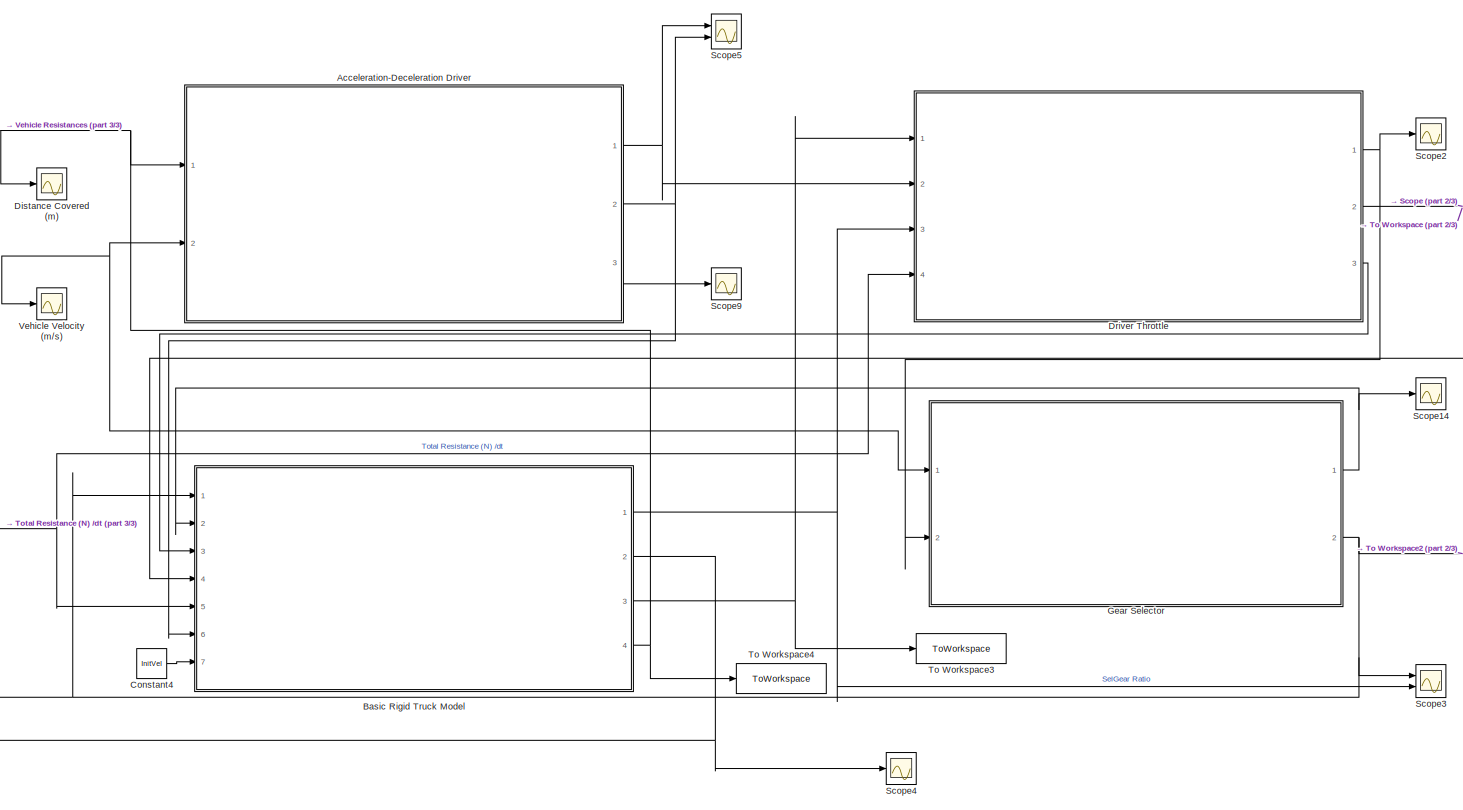
[diagram: root canvas - part 1/3, center side, full height]
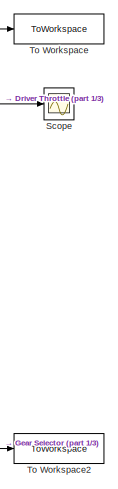
[diagram: root canvas - part 2/3, middle right region]
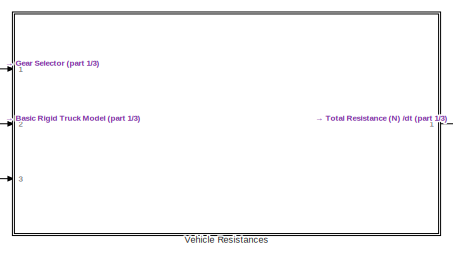
[diagram: root canvas - part 3/3, middle left region]
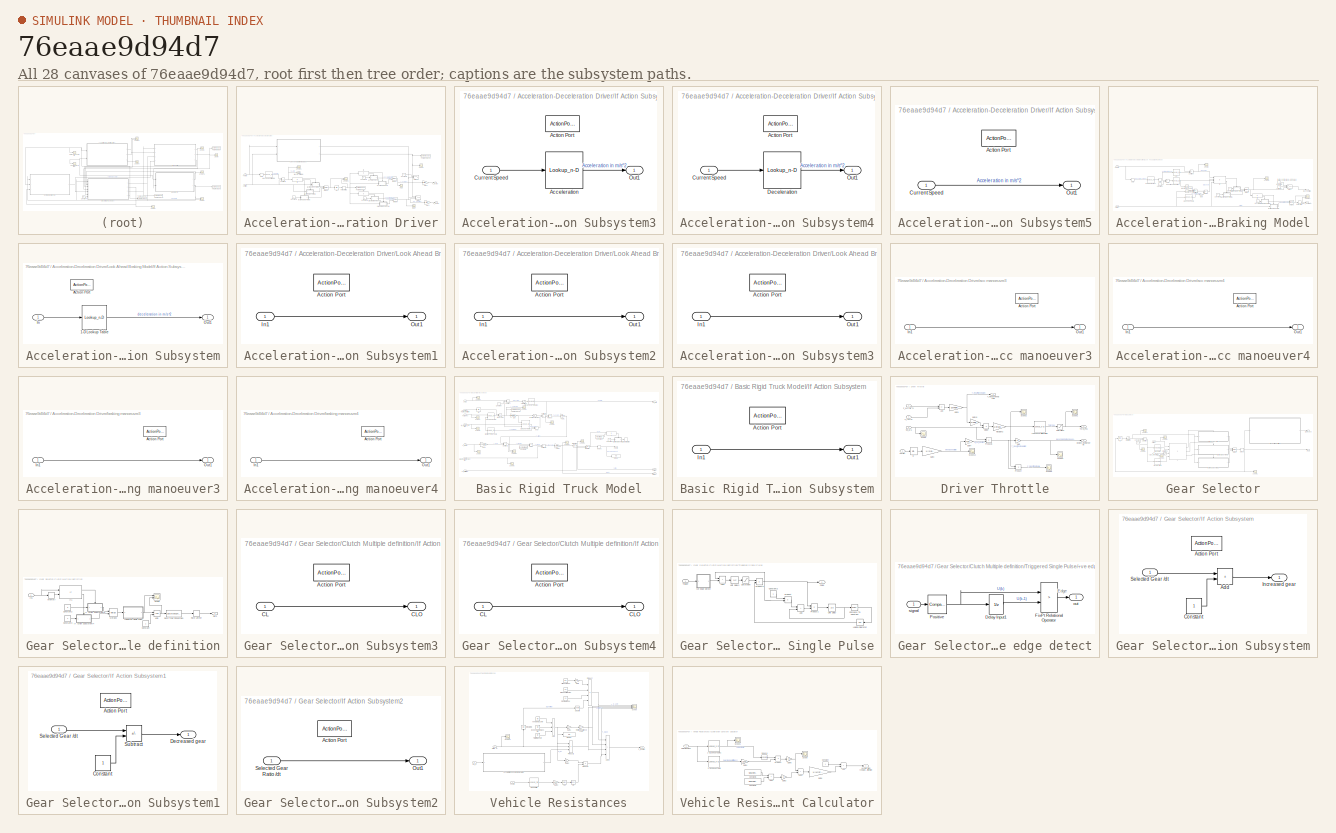
[diagram: thumbnail index - all 28 canvases of the model, root first then tree order]
MODEL slx_76eaae9d94d7
KIND model
CONFIG AbsTol = auto
CONFIG EnableMultiTasking = off
CONFIG FixedStep = dt
CONFIG MaxStep = auto
CONFIG MinStep = auto
CONFIG RelTol = 1e-3
CONFIG SampleTimeConstraint = Unconstrained
CONFIG SolverName = ode8
CONFIG StartTime = 0.0
CONFIG StopTime = 250
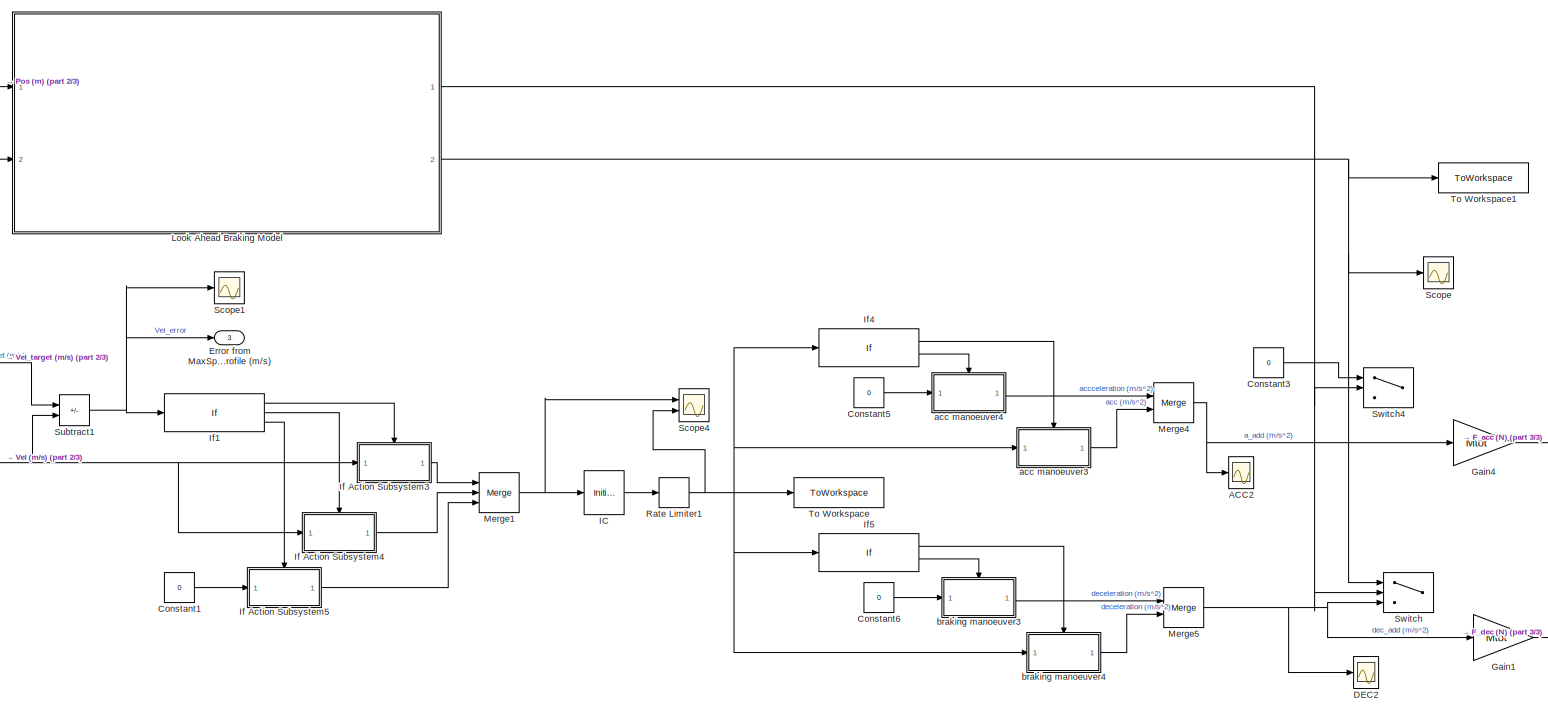
[diagram: Acceleration-Deceleration Driver - part 1/3, most of the canvas]
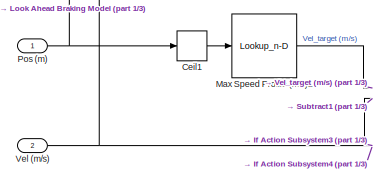
[diagram: Acceleration-Deceleration Driver - part 2/3, middle left region]
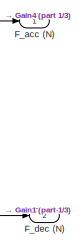
[diagram: Acceleration-Deceleration Driver - part 3/3, bottom right region]
BLOCK [SubSystem] Acceleration-Deceleration Driver
  Ports = [2, 3]
  RequestExecContextInheritance = off
BLOCK [Scope] Acceleration-Deceleration Driver/ACC2
  Floating = off
  NumInputPorts = 1
  Ports = [1]
  ScopeSpecificationString = Simulink.scopes.TimeScopeBlockCfg('CurrentConfiguration', extmgr.ConfigurationSet(extmgr.Configuration('Core','General UI',true),extmgr.Configuration('Core','Source UI',true),extmgr.Configuration('Sources','WiredSimulink',true,'DataLoggingVariableName','ScopeData5'),extmgr.Configuration('Visuals','Time Domain',true,'SerializedDisplays',{struct('MinYLimReal','-0.125','MaxYLimReal','1.125','YLabelRe...<+1390ch>
BLOCK [Rounding] Acceleration-Deceleration Driver/Ceil1
  Operator = ceil
BLOCK [Constant] Acceleration-Deceleration Driver/Constant1
  Value = 0
BLOCK [Constant] Acceleration-Deceleration Driver/Constant3
  Value = 0
BLOCK [Constant] Acceleration-Deceleration Driver/Constant5
  Value = 0
BLOCK [Constant] Acceleration-Deceleration Driver/Constant6
  Value = 0
BLOCK [Scope] Acceleration-Deceleration Driver/DEC2
  Floating = off
  NumInputPorts = 1
  Ports = [1]
  ScopeSpecificationString = Simulink.scopes.TimeScopeBlockCfg('CurrentConfiguration', extmgr.ConfigurationSet(extmgr.Configuration('Core','General UI',true),extmgr.Configuration('Core','Source UI',true),extmgr.Configuration('Sources','WiredSimulink',true,'DataLoggingVariableName','ScopeData6'),extmgr.Configuration('Visuals','Time Domain',true,'SerializedDisplays',{struct('MinYLimReal','-1.125','MaxYLimReal','0.125','YLabelRe...<+1391ch>
BLOCK [Outport] Acceleration-Deceleration Driver/Error from MaxSpeedProfile (m//s)
  Port = 3
BLOCK [Outport] Acceleration-Deceleration Driver/F_acc (N)
BLOCK [Outport] Acceleration-Deceleration Driver/F_dec (N)
  Port = 2
BLOCK [Gain] Acceleration-Deceleration Driver/Gain1
  Gain = Mtot
BLOCK [Gain] Acceleration-Deceleration Driver/Gain4
  Gain = Mtot
BLOCK [InitialCondition] Acceleration-Deceleration Driver/IC
  Value = 0
BLOCK [SubSystem] Acceleration-Deceleration Driver/If Action Subsystem3
  Ports = [1, 1, 0, 0, 0, 0, 0, 1]
  RequestExecContextInheritance = off
  TreatAsAtomicUnit = on
BLOCK [Lookup_n-D] Acceleration-Deceleration Driver/If Action Subsystem3/Acceleration
  BreakpointsForDimension1 = AccLim(:,1)
  InputPortMap = u0
  InternalRulePriority = Speed
  NumberOfTableDimensions = 1
  Ports = [1, 1]
  RndMeth = Simplest
  Table = AccLim(:,2)
BLOCK [ActionPort] Acceleration-Deceleration Driver/If Action Subsystem3/Action Port
  ActionPortLabel = if(u1 > 0)
BLOCK [Inport] Acceleration-Deceleration Driver/If Action Subsystem3/Current Speed
BLOCK [Outport] Acceleration-Deceleration Driver/If Action Subsystem3/Out1
BLOCK [SubSystem] Acceleration-Deceleration Driver/If Action Subsystem4
  Ports = [1, 1, 0, 0, 0, 0, 0, 1]
  RequestExecContextInheritance = off
  TreatAsAtomicUnit = on
BLOCK [ActionPort] Acceleration-Deceleration Driver/If Action Subsystem4/Action Port
  ActionPortLabel = elseif(u1 < 0)
BLOCK [Inport] Acceleration-Deceleration Driver/If Action Subsystem4/Current Speed
BLOCK [Lookup_n-D] Acceleration-Deceleration Driver/If Action Subsystem4/Deceleration
  BreakpointsForDimension1 = AccLim(:,1)
  InputPortMap = u0
  InternalRulePriority = Speed
  NumberOfTableDimensions = 1
  Ports = [1, 1]
  RndMeth = Simplest
  Table = AccLim(:,3)
BLOCK [Outport] Acceleration-Deceleration Driver/If Action Subsystem4/Out1
BLOCK [SubSystem] Acceleration-Deceleration Driver/If Action Subsystem5
  Ports = [1, 1, 0, 0, 0, 0, 0, 1]
  RequestExecContextInheritance = off
  TreatAsAtomicUnit = on
BLOCK [ActionPort] Acceleration-Deceleration Driver/If Action Subsystem5/Action Port
  ActionPortLabel = else
BLOCK [Inport] Acceleration-Deceleration Driver/If Action Subsystem5/Current Speed
BLOCK [Outport] Acceleration-Deceleration Driver/If Action Subsystem5/Out1
BLOCK [If] Acceleration-Deceleration Driver/If1
  ElseIfExpressions = u1 < 0
  Ports = [1, 3]
BLOCK [If] Acceleration-Deceleration Driver/If4
  Ports = [1, 2]
BLOCK [If] Acceleration-Deceleration Driver/If5
  IfExpression = u1 < 0
  Ports = [1, 2]
BLOCK [SubSystem] Acceleration-Deceleration Driver/Look Ahead Braking Model
  Commented = on
  Ports = [2, 2]
  RequestExecContextInheritance = off
BLOCK [Lookup_n-D] Acceleration-Deceleration Driver/Look Ahead Braking Model/1-D Lookup Table
  BreakpointsForDimension1 = AccLim(:,1)
  InputPortMap = u0
  InternalRulePriority = Speed
  NumberOfTableDimensions = 1
  Ports = [1, 1]
  RndMeth = Simplest
  Table = AccLim(:,3)
BLOCK [Sum] Acceleration-Deceleration Driver/Look Ahead Braking Model/Add3
  IconShape = rectangular
  Ports = [2, 1]
BLOCK [Rounding] Acceleration-Deceleration Driver/Look Ahead Braking Model/Ceil
  Operator = ceil
BLOCK [Rounding] Acceleration-Deceleration Driver/Look Ahead Braking Model/Ceil1
  Operator = ceil
BLOCK [Constant] Acceleration-Deceleration Driver/Look Ahead Braking Model/Constant
BLOCK [Constant] Acceleration-Deceleration Driver/Look Ahead Braking Model/Constant1
  Value = 0
BLOCK [Constant] Acceleration-Deceleration Driver/Look Ahead Braking Model/Constant2
BLOCK [Constant] Acceleration-Deceleration Driver/Look Ahead Braking Model/Constant3
  Value = 0
BLOCK [Constant] Acceleration-Deceleration Driver/Look Ahead Braking Model/Constant5
  Value = 0
BLOCK [Outport] Acceleration-Deceleration Driver/Look Ahead Braking Model/Dec_Override
BLOCK [Product] Acceleration-Deceleration Driver/Look Ahead Braking Model/Divide
  Inputs = */
  Ports = [2, 1]
BLOCK [Gain] Acceleration-Deceleration Driver/Look Ahead Braking Model/Gain
  Gain = 2
BLOCK [SubSystem] Acceleration-Deceleration Driver/Look Ahead Braking Model/If Action Subsystem
  Ports = [1, 1, 0, 0, 0, 0, 0, 1]
  RequestExecContextInheritance = off
  TreatAsAtomicUnit = on
BLOCK [Lookup_n-D] Acceleration-Deceleration Driver/Look Ahead Braking Model/If Action Subsystem/1-D Lookup Table
  BreakpointsForDimension1 = AccLim(:,1)
  InputPortMap = u0
  InternalRulePriority = Speed
  NumberOfTableDimensions = 1
  Ports = [1, 1]
  RndMeth = Simplest
  Table = AccLim(:,3)
BLOCK [ActionPort] Acceleration-Deceleration Driver/Look Ahead Braking Model/If Action Subsystem/Action Port
  ActionPortLabel = if(u1 > 0)
BLOCK [Inport] Acceleration-Deceleration Driver/Look Ahead Braking Model/If Action Subsystem/In
BLOCK [Outport] Acceleration-Deceleration Driver/Look Ahead Braking Model/If Action Subsystem/Out1
BLOCK [SubSystem] Acceleration-Deceleration Driver/Look Ahead Braking Model/If Action Subsystem1
  Ports = [1, 1, 0, 0, 0, 0, 0, 1]
  RequestExecContextInheritance = off
  TreatAsAtomicUnit = on
BLOCK [ActionPort] Acceleration-Deceleration Driver/Look Ahead Braking Model/If Action Subsystem1/Action Port
  ActionPortLabel = else
BLOCK [Inport] Acceleration-Deceleration Driver/Look Ahead Braking Model/If Action Subsystem1/In1
BLOCK [Outport] Acceleration-Deceleration Driver/Look Ahead Braking Model/If Action Subsystem1/Out1
BLOCK [SubSystem] Acceleration-Deceleration Driver/Look Ahead Braking Model/If Action Subsystem2
  Ports = [1, 1, 0, 0, 0, 0, 0, 1]
  RequestExecContextInheritance = off
  TreatAsAtomicUnit = on
BLOCK [ActionPort] Acceleration-Deceleration Driver/Look Ahead Braking Model/If Action Subsystem2/Action Port
  ActionPortLabel = if(u1 <= u2 & u3 < u4)
BLOCK [Inport] Acceleration-Deceleration Driver/Look Ahead Braking Model/If Action Subsystem2/In1
BLOCK [Outport] Acceleration-Deceleration Driver/Look Ahead Braking Model/If Action Subsystem2/Out1
BLOCK [SubSystem] Acceleration-Deceleration Driver/Look Ahead Braking Model/If Action Subsystem3
  Ports = [1, 1, 0, 0, 0, 0, 0, 1]
  RequestExecContextInheritance = off
  TreatAsAtomicUnit = on
BLOCK [ActionPort] Acceleration-Deceleration Driver/Look Ahead Braking Model/If Action Subsystem3/Action Port
  ActionPortLabel = else
BLOCK [Inport] Acceleration-Deceleration Driver/Look Ahead Braking Model/If Action Subsystem3/In1
BLOCK [Outport] Acceleration-Deceleration Driver/Look Ahead Braking Model/If Action Subsystem3/Out1
BLOCK [If] Acceleration-Deceleration Driver/Look Ahead Braking Model/If1
  IfExpression = u1 <= u2 & u3 < u4
  NumInputs = 4
  Ports = [4, 2]
BLOCK [If] Acceleration-Deceleration Driver/Look Ahead Braking Model/If2
  Ports = [1, 2]
BLOCK [Math] Acceleration-Deceleration Driver/Look Ahead Braking Model/Magnitude Squared
  Operator = square
  Ports = [1, 1]
BLOCK [Math] Acceleration-Deceleration Driver/Look Ahead Braking Model/Magnitude Squared1
  Operator = square
  Ports = [1, 1]
BLOCK [Merge] Acceleration-Deceleration Driver/Look Ahead Braking Model/Merge
  Ports = [2, 1]
BLOCK [Merge] Acceleration-Deceleration Driver/Look Ahead Braking Model/Merge1
  Ports = [2, 1]
BLOCK [Inport] Acceleration-Deceleration Driver/Look Ahead Braking Model/Pos (m)
BLOCK [RateLimiter] Acceleration-Deceleration Driver/Look Ahead Braking Model/Rate Limiter
  SampleTimeMode = inherited
BLOCK [Lookup_n-D] Acceleration-Deceleration Driver/Look Ahead Braking Model/SCP
  BreakpointsForDimension1 = SegNo
  BreakpointsForDimension2 = G1Inprpm
  InputPortMap = u0
  InternalRulePriority = Speed
  InterpMethod = Linear Lagrange
  NumberOfTableDimensions = 1
  Ports = [1, 1]
  RndMeth = Simplest
  Table = CovDist
BLOCK [Scope] Acceleration-Deceleration Driver/Look Ahead Braking Model/Scope
  Floating = off
  NumInputPorts = 1
  Ports = [1]
  ScopeSpecificationString = Simulink.scopes.TimeScopeBlockCfg('CurrentConfiguration', extmgr.ConfigurationSet(extmgr.Configuration('Core','General UI',true),extmgr.Configuration('Core','Source UI',true),extmgr.Configuration('Sources','WiredSimulink',true,'DataLoggingVariableName','ScopeData3'),extmgr.Configuration('Visuals','Time Domain',true,'SerializedDisplays',{struct('MinYLimReal','-28.00000','MaxYLimReal','252.00000','Y...<+1411ch>
BLOCK [Scope] Acceleration-Deceleration Driver/Look Ahead Braking Model/Scope1
  Floating = off
  NumInputPorts = 2
  Ports = [2]
  ScopeSpecificationString = Simulink.scopes.TimeScopeBlockCfg('CurrentConfiguration', extmgr.ConfigurationSet(extmgr.Configuration('Core','General UI',true),extmgr.Configuration('Core','Source UI',true),extmgr.Configuration('Sources','WiredSimulink',true,'DataLoggingVariableName','ScopeData3'),extmgr.Configuration('Visuals','Time Domain',true,'SerializedDisplays',{struct('MinYLimReal','-1.125','MaxYLimReal','0.125','YLabelRe...<+1443ch>
BLOCK [Scope] Acceleration-Deceleration Driver/Look Ahead Braking Model/Scope2
  Floating = off
  NumInputPorts = 1
  Ports = [1]
  ScopeSpecificationString = Simulink.scopes.TimeScopeBlockCfg('CurrentConfiguration', extmgr.ConfigurationSet(extmgr.Configuration('Core','General UI',true),extmgr.Configuration('Core','Source UI',true),extmgr.Configuration('Sources','WiredSimulink',true,'DataLoggingVariableName','ScopeData33'),extmgr.Configuration('Visuals','Time Domain',true,'SerializedDisplays',{struct('MinYLimReal','-0.125','MaxYLimReal','1.125','YLabelR...<+1353ch>
BLOCK [Lookup_n-D] Acceleration-Deceleration Driver/Look Ahead Braking Model/Segment number
  BreakpointsForDimension1 = CovDist
  BreakpointsForDimension2 = G1Inprpm
  InputPortMap = u0
  InternalRulePriority = Speed
  InterpMethod = Linear Lagrange
  NumberOfTableDimensions = 1
  Ports = [1, 1]
  RndMeth = Simplest
  Table = SegNo
BLOCK [Sum] Acceleration-Deceleration Driver/Look Ahead Braking Model/Subtract
  IconShape = rectangular
  Inputs = -+
  Ports = [2, 1]
BLOCK [Sum] Acceleration-Deceleration Driver/Look Ahead Braking Model/Subtract1
  IconShape = rectangular
  Inputs = +-
  Ports = [2, 1]
BLOCK [Switch] Acceleration-Deceleration Driver/Look Ahead Braking Model/Switch
  Criteria = u2 > Threshold
  InputSameDT = off
  SaturateOnIntegerOverflow = off
BLOCK [Inport] Acceleration-Deceleration Driver/Look Ahead Braking Model/Vel (m//s)
  Port = 2
BLOCK [Constant] Acceleration-Deceleration Driver/Look Ahead Braking Model/control val
  NameLocation = left
BLOCK [Outport] Acceleration-Deceleration Driver/Look Ahead Braking Model/dec_add (m//s^2)
  Port = 2
BLOCK [Lookup_n-D] Acceleration-Deceleration Driver/Look Ahead Braking Model/upcoming speed (m//s)
  BreakpointsForDimension1 = SegNo
  BreakpointsForDimension2 = G1Inprpm
  InputPortMap = u0
  InternalRulePriority = Speed
  InterpMethod = Linear Lagrange
  NumberOfTableDimensions = 1
  Ports = [1, 1]
  RndMeth = Simplest
  Table = SegSPLatinmps
BLOCK [Lookup_n-D] Acceleration-Deceleration Driver/Max Speed Profile (m//s)1
  BreakpointsForDimension1 = [1:length(MaxSpeedProfile)]
  BreakpointsForDimension2 = G1Inprpm
  InputPortMap = u0
  InternalRulePriority = Speed
  InterpMethod = Linear Lagrange
  NumberOfTableDimensions = 1
  Ports = [1, 1]
  RndMeth = Simplest
  Table = MaxSpeedProfile
BLOCK [Merge] Acceleration-Deceleration Driver/Merge1
  Inputs = 3
  Ports = [3, 1]
BLOCK [Merge] Acceleration-Deceleration Driver/Merge4
  Ports = [2, 1]
BLOCK [Merge] Acceleration-Deceleration Driver/Merge5
  Ports = [2, 1]
BLOCK [Inport] Acceleration-Deceleration Driver/Pos (m)
BLOCK [RateLimiter] Acceleration-Deceleration Driver/Rate Limiter1
  RisingSlewLimit = 0.5
  SampleTimeMode = inherited
BLOCK [Scope] Acceleration-Deceleration Driver/Scope
  Commented = on
  Floating = off
  NumInputPorts = 1
  Ports = [1]
  ScopeSpecificationString = Simulink.scopes.TimeScopeBlockCfg('CurrentConfiguration', extmgr.ConfigurationSet(extmgr.Configuration('Core','General UI',true),extmgr.Configuration('Core','Source UI',true),extmgr.Configuration('Sources','WiredSimulink',true,'DataLoggingVariableName','ScopeData7'),extmgr.Configuration('Visuals','Time Domain',true,'SerializedDisplays',{struct('MinYLimReal','-1.125','MaxYLimReal','0.125','YLabelRe...<+1373ch>
BLOCK [Scope] Acceleration-Deceleration Driver/Scope1
  Floating = off
  NumInputPorts = 1
  Ports = [1]
  ScopeSpecificationString = Simulink.scopes.TimeScopeBlockCfg('CurrentConfiguration', extmgr.ConfigurationSet(extmgr.Configuration('Core','General UI',true),extmgr.Configuration('Core','Source UI',true),extmgr.Configuration('Sources','WiredSimulink',true,'DataLoggingVariableName','ScopeData7'),extmgr.Configuration('Visuals','Time Domain',true,'SerializedDisplays',{struct('MinYLimReal','0.70363','MaxYLimReal','27.03703','YLab...<+1389ch>
BLOCK [Scope] Acceleration-Deceleration Driver/Scope4
  Floating = off
  NumInputPorts = 2
  Ports = [2]
  ScopeSpecificationString = Simulink.scopes.TimeScopeBlockCfg('CurrentConfiguration', extmgr.ConfigurationSet(extmgr.Configuration('Core','General UI',true),extmgr.Configuration('Core','Source UI',true),extmgr.Configuration('Sources','WiredSimulink',true,'DataLoggingVariableName','ScopeData8'),extmgr.Configuration('Visuals','Time Domain',true,'SerializedDisplays',{struct('MinYLimReal','-1.25','MaxYLimReal','1.25','YLabelReal...<+1438ch>
BLOCK [Sum] Acceleration-Deceleration Driver/Subtract1
  IconShape = rectangular
  Inputs = +-
  Ports = [2, 1]
BLOCK [Switch] Acceleration-Deceleration Driver/Switch
  Commented = on
  Criteria = u2 > Threshold
  InputSameDT = off
  SaturateOnIntegerOverflow = off
BLOCK [Switch] Acceleration-Deceleration Driver/Switch4
  Commented = on
  Criteria = u2 > Threshold
  InputSameDT = off
  SaturateOnIntegerOverflow = off
BLOCK [ToWorkspace] Acceleration-Deceleration Driver/To Workspace
  FixptAsFi = on
  MaxDataPoints = inf
  Ports = [1]
  SampleTime = -1
  SaveFormat = Timeseries
  VariableName = AccDec
BLOCK [ToWorkspace] Acceleration-Deceleration Driver/To Workspace1
  Commented = on
  FixptAsFi = on
  MaxDataPoints = inf
  Ports = [1]
  SampleTime = -1
  SaveFormat = Timeseries
  VariableName = LAB
BLOCK [Inport] Acceleration-Deceleration Driver/Vel (m//s)
  Port = 2
BLOCK [SubSystem] Acceleration-Deceleration Driver/acc manoeuver3
  Ports = [1, 1, 0, 0, 0, 0, 0, 1]
  RequestExecContextInheritance = off
  TreatAsAtomicUnit = on
BLOCK [ActionPort] Acceleration-Deceleration Driver/acc manoeuver3/Action Port
  ActionPortLabel = if(u1 > 0)
BLOCK [Inport] Acceleration-Deceleration Driver/acc manoeuver3/In1
BLOCK [Outport] Acceleration-Deceleration Driver/acc manoeuver3/Out1
BLOCK [SubSystem] Acceleration-Deceleration Driver/acc manoeuver4
  Ports = [1, 1, 0, 0, 0, 0, 0, 1]
  RequestExecContextInheritance = off
  TreatAsAtomicUnit = on
BLOCK [ActionPort] Acceleration-Deceleration Driver/acc manoeuver4/Action Port
  ActionPortLabel = else
BLOCK [Inport] Acceleration-Deceleration Driver/acc manoeuver4/In1
BLOCK [Outport] Acceleration-Deceleration Driver/acc manoeuver4/Out1
BLOCK [SubSystem] Acceleration-Deceleration Driver/braking manoeuver3
  Ports = [1, 1, 0, 0, 0, 0, 0, 1]
  RequestExecContextInheritance = off
  TreatAsAtomicUnit = on
BLOCK [ActionPort] Acceleration-Deceleration Driver/braking manoeuver3/Action Port
  ActionPortLabel = else
BLOCK [Inport] Acceleration-Deceleration Driver/braking manoeuver3/In1
BLOCK [Outport] Acceleration-Deceleration Driver/braking manoeuver3/Out1
BLOCK [SubSystem] Acceleration-Deceleration Driver/braking manoeuver4
  Ports = [1, 1, 0, 0, 0, 0, 0, 1]
  RequestExecContextInheritance = off
  TreatAsAtomicUnit = on
BLOCK [ActionPort] Acceleration-Deceleration Driver/braking manoeuver4/Action Port
  ActionPortLabel = if(u1 < 0)
BLOCK [Inport] Acceleration-Deceleration Driver/braking manoeuver4/In1
BLOCK [Outport] Acceleration-Deceleration Driver/braking manoeuver4/Out1
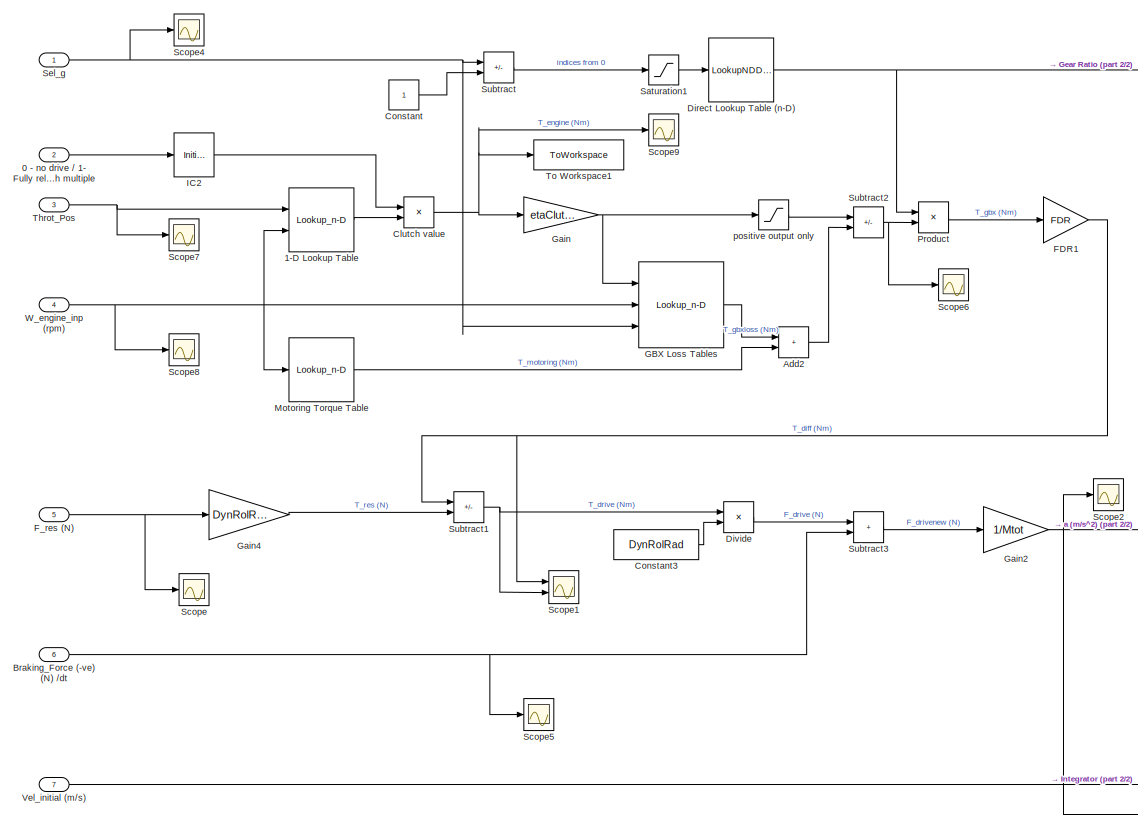
[diagram: Basic Rigid Truck Model - part 1/2, left side, full height]
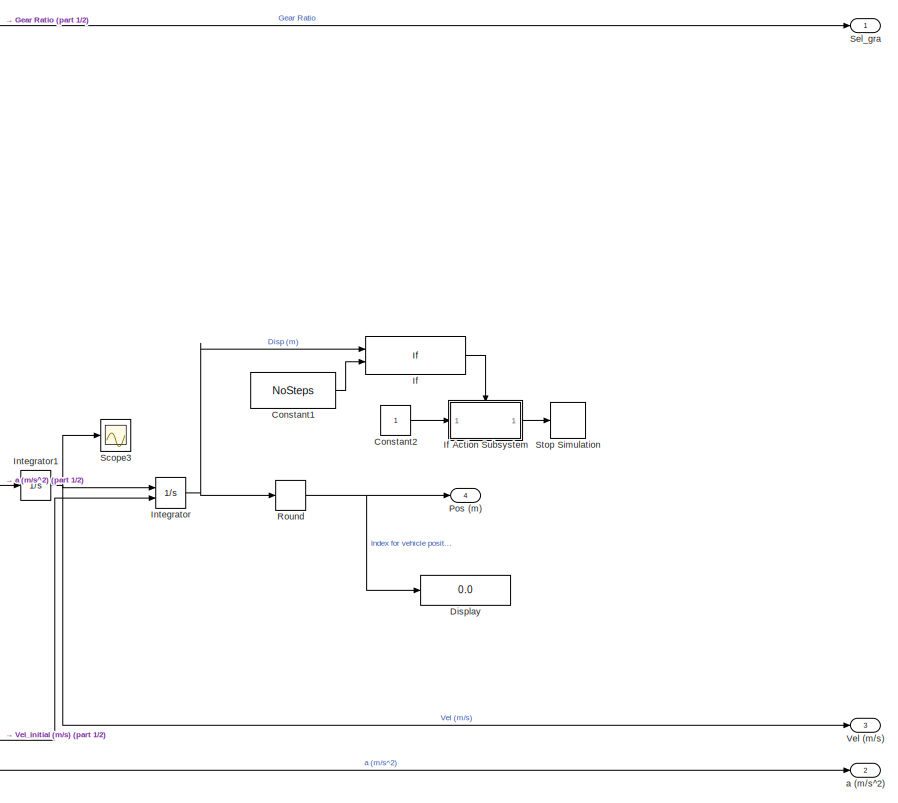
[diagram: Basic Rigid Truck Model - part 2/2, right side, full height]
BLOCK [SubSystem] Basic Rigid Truck Model
  Ports = [7, 4]
  RequestExecContextInheritance = off
BLOCK [Inport] Basic Rigid Truck Model/0 - no drive // 1- Fully released clutch multiple
  Port = 2
BLOCK [Lookup_n-D] Basic Rigid Truck Model/1-D Lookup Table
  BreakpointsForDimension1 = ThrotPos
  BreakpointsForDimension2 = RpmBrkPnt
  InputPortMap = u0,u1
  InternalRulePriority = Speed
  Ports = [2, 1]
  RndMeth = Simplest
  Table = ThrotTableVal
BLOCK [Sum] Basic Rigid Truck Model/Add2
  IconShape = rectangular
  Ports = [2, 1]
BLOCK [Inport] Basic Rigid Truck Model/Braking_Force (-ve) (N) //dt
  Port = 6
BLOCK [Product] Basic Rigid Truck Model/Clutch value
  Ports = [2, 1]
BLOCK [Constant] Basic Rigid Truck Model/Constant
BLOCK [Constant] Basic Rigid Truck Model/Constant1
  Value = NoSteps
BLOCK [Constant] Basic Rigid Truck Model/Constant2
BLOCK [Constant] Basic Rigid Truck Model/Constant3
  Value = DynRolRad
BLOCK [LookupNDDirect] Basic Rigid Truck Model/Direct Lookup Table (n-D)
  NumberOfTableDimensions = 1
  Ports = [1, 1]
  Table = GRa
BLOCK [Display] Basic Rigid Truck Model/Display
  Decimation = 1
  Ports = [1]
BLOCK [Product] Basic Rigid Truck Model/Divide
  Inputs = */
  Ports = [2, 1]
BLOCK [Gain] Basic Rigid Truck Model/FDR1
  Gain = FDR
BLOCK [Inport] Basic Rigid Truck Model/F_res (N)
  Port = 5
BLOCK [Lookup_n-D] Basic Rigid Truck Model/GBX Loss Tables
  BreakpointsForDimension1 = GInpTor
  BreakpointsForDimension2 = GInprpm
  BreakpointsForDimension3 = GearNo
  InputPortMap = u0,u1,u2
  InternalRulePriority = Speed
  InterpMethod = Linear Lagrange
  NumberOfTableDimensions = 3
  Ports = [3, 1]
  RndMeth = Simplest
  Table = GTorLoss
BLOCK [Gain] Basic Rigid Truck Model/Gain
  Gain = etaClutch
BLOCK [Gain] Basic Rigid Truck Model/Gain2
  Gain = 1/Mtot
BLOCK [Gain] Basic Rigid Truck Model/Gain4
  Gain = DynRolRad
BLOCK [InitialCondition] Basic Rigid Truck Model/IC2
BLOCK [If] Basic Rigid Truck Model/If
  IfExpression = u1 > u2
  NumInputs = 2
  Ports = [2, 1]
  ShowElse = off
BLOCK [SubSystem] Basic Rigid Truck Model/If Action Subsystem
  Ports = [1, 1, 0, 0, 0, 0, 0, 1]
  RequestExecContextInheritance = off
  TreatAsAtomicUnit = on
BLOCK [ActionPort] Basic Rigid Truck Model/If Action Subsystem/Action Port
  ActionPortLabel = if(u1 > u2)
BLOCK [Inport] Basic Rigid Truck Model/If Action Subsystem/In1
BLOCK [Outport] Basic Rigid Truck Model/If Action Subsystem/Out1
BLOCK [Integrator] Basic Rigid Truck Model/Integrator
  ContinuousStateAttributes = 'velocity'
  InitialConditionSource = external
  Ports = [2, 1]
BLOCK [Integrator] Basic Rigid Truck Model/Integrator1
  ContinuousStateAttributes = 'acceleration'
  Ports = [1, 1]
BLOCK [Lookup_n-D] Basic Rigid Truck Model/Motoring Torque Table
  BreakpointsForDimension1 = EngineRpm
  BreakpointsForDimension2 = G1Inprpm
  InputPortMap = u0
  InternalRulePriority = Speed
  InterpMethod = Linear Lagrange
  NumberOfTableDimensions = 1
  Ports = [1, 1]
  RndMeth = Simplest
  Table = MotoringTor
BLOCK [Outport] Basic Rigid Truck Model/Pos (m)
  Port = 4
BLOCK [Product] Basic Rigid Truck Model/Product
  Ports = [2, 1]
BLOCK [Rounding] Basic Rigid Truck Model/Round
  Operator = ceil
BLOCK [Saturate] Basic Rigid Truck Model/Saturation1
  LowerLimit = 0
  UpperLimit = inf
BLOCK [Scope] Basic Rigid Truck Model/Scope
  Floating = off
  NumInputPorts = 1
  Ports = [1]
  ScopeSpecificationString = Simulink.scopes.TimeScopeBlockCfg('CurrentConfiguration', extmgr.ConfigurationSet(extmgr.Configuration('Core','General UI',true),extmgr.Configuration('Core','Source UI',true),extmgr.Configuration('Sources','WiredSimulink',true,'DataLoggingVariableName','ScopeData10'),extmgr.Configuration('Visuals','Time Domain',true,'SerializedDisplays',{struct('MinYLimReal','-7898.27464','MaxYLimReal','16578.2643...<+1422ch>
BLOCK [Scope] Basic Rigid Truck Model/Scope1
  Floating = off
  NumInputPorts = 2
  Ports = [2]
  ScopeSpecificationString = Simulink.scopes.TimeScopeBlockCfg('CurrentConfiguration', extmgr.ConfigurationSet(extmgr.Configuration('Core','General UI',true),extmgr.Configuration('Core','Source UI',true),extmgr.Configuration('Sources','WiredSimulink',true,'DataLoggingVariableName','ScopeData17'),extmgr.Configuration('Visuals','Time Domain',true,'SerializedDisplays',{struct('MinYLimReal','-484.23113','MaxYLimReal','2427.82752'...<+1477ch>
BLOCK [Scope] Basic Rigid Truck Model/Scope2
  Floating = off
  NumInputPorts = 1
  Ports = [1]
  ScopeSpecificationString = Simulink.scopes.TimeScopeBlockCfg('CurrentConfiguration', extmgr.ConfigurationSet(extmgr.Configuration('Core','General UI',true),extmgr.Configuration('Core','Source UI',true),extmgr.Configuration('Sources','WiredSimulink',true,'DataLoggingVariableName','ScopeData4'),extmgr.Configuration('Visuals','Time Domain',true,'SerializedDisplays',{struct('MinYLimReal','-0.2306','MaxYLimReal','0.50154','YLabe...<+1395ch>
BLOCK [Scope] Basic Rigid Truck Model/Scope3
  Floating = off
  NumInputPorts = 1
  Ports = [1]
  ScopeSpecificationString = Simulink.scopes.TimeScopeBlockCfg('CurrentConfiguration', extmgr.ConfigurationSet(extmgr.Configuration('Core','General UI',true),extmgr.Configuration('Core','Source UI',true),extmgr.Configuration('Sources','WiredSimulink',true,'DataLoggingVariableName','ScopeData9'),extmgr.Configuration('Visuals','Time Domain',true,'SerializedDisplays',{struct('MinYLimReal','-1.86223','MaxYLimReal','15.69968','YLa...<+1372ch>
BLOCK [Scope] Basic Rigid Truck Model/Scope4
  Floating = off
  NumInputPorts = 1
  Ports = [1]
  ScopeSpecificationString = Simulink.scopes.TimeScopeBlockCfg('CurrentConfiguration', extmgr.ConfigurationSet(extmgr.Configuration('Core','General UI',true),extmgr.Configuration('Core','Source UI',true),extmgr.Configuration('Sources','WiredSimulink',true,'DataLoggingVariableName','ScopeData2'),extmgr.Configuration('Visuals','Time Domain',true,'SerializedDisplays',{struct('MinYLimReal','-0.5','MaxYLimReal','4.5','YLabelReal',...<+1340ch>
BLOCK [Scope] Basic Rigid Truck Model/Scope5
  Floating = off
  NumInputPorts = 1
  Ports = [1]
  ScopeSpecificationString = Simulink.scopes.TimeScopeBlockCfg('CurrentConfiguration', extmgr.ConfigurationSet(extmgr.Configuration('Core','General UI',true),extmgr.Configuration('Core','Source UI',true),extmgr.Configuration('Sources','WiredSimulink',true,'DataLoggingVariableName','ScopeData11'),extmgr.Configuration('Visuals','Time Domain',true,'SerializedDisplays',{struct('MinYLimReal','-1050.75','MaxYLimReal','116.75','YLab...<+1389ch>
BLOCK [Scope] Basic Rigid Truck Model/Scope6
  Floating = off
  NumInputPorts = 1
  Ports = [1]
  ScopeSpecificationString = Simulink.scopes.TimeScopeBlockCfg('CurrentConfiguration', extmgr.ConfigurationSet(extmgr.Configuration('Core','General UI',true),extmgr.Configuration('Core','Source UI',true),extmgr.Configuration('Sources','WiredSimulink',true,'DataLoggingVariableName','ScopeData12'),extmgr.Configuration('Visuals','Time Domain',true,'SerializedDisplays',{struct('MinYLimReal','-37.39756','MaxYLimReal','264.55365','...<+1379ch>
BLOCK [Scope] Basic Rigid Truck Model/Scope7
  Floating = off
  NumInputPorts = 1
  Ports = [1]
  ScopeSpecificationString = Simulink.scopes.TimeScopeBlockCfg('CurrentConfiguration', extmgr.ConfigurationSet(extmgr.Configuration('Core','General UI',true),extmgr.Configuration('Core','Source UI',true),extmgr.Configuration('Sources','WiredSimulink',true,'DataLoggingVariableName','ScopeData13'),extmgr.Configuration('Visuals','Time Domain',true,'SerializedDisplays',{struct('MinYLimReal','-0.03627','MaxYLimReal','0.32644','YLa...<+1398ch>
BLOCK [Scope] Basic Rigid Truck Model/Scope8
  Floating = off
  NumInputPorts = 1
  Ports = [1]
  ScopeSpecificationString = Simulink.scopes.TimeScopeBlockCfg('CurrentConfiguration', extmgr.ConfigurationSet(extmgr.Configuration('Core','General UI',true),extmgr.Configuration('Core','Source UI',true),extmgr.Configuration('Sources','WiredSimulink',true,'DataLoggingVariableName','ScopeData14'),extmgr.Configuration('Visuals','Time Domain',true,'SerializedDisplays',{struct('MinYLimReal','-298.06253','MaxYLimReal','2055.82994'...<+1431ch>
BLOCK [Scope] Basic Rigid Truck Model/Scope9
  Floating = off
  NumInputPorts = 1
  Ports = [1]
  ScopeSpecificationString = Simulink.scopes.TimeScopeBlockCfg('CurrentConfiguration', extmgr.ConfigurationSet(extmgr.Configuration('Core','General UI',true),extmgr.Configuration('Core','Source UI',true),extmgr.Configuration('Sources','WiredSimulink',true,'DataLoggingVariableName','ScopeData15'),extmgr.Configuration('Visuals','Time Domain',true,'SerializedDisplays',{struct('MinYLimReal','-25.40093','MaxYLimReal','228.60835','...<+1410ch>
BLOCK [Inport] Basic Rigid Truck Model/Sel_g
BLOCK [Outport] Basic Rigid Truck Model/Sel_gra
BLOCK [Stop] Basic Rigid Truck Model/Stop Simulation
BLOCK [Sum] Basic Rigid Truck Model/Subtract
  IconShape = rectangular
  Inputs = +-
  Ports = [2, 1]
BLOCK [Sum] Basic Rigid Truck Model/Subtract1
  IconShape = rectangular
  Inputs = +-
  Ports = [2, 1]
BLOCK [Sum] Basic Rigid Truck Model/Subtract2
  IconShape = rectangular
  Inputs = +-
  Ports = [2, 1]
BLOCK [Sum] Basic Rigid Truck Model/Subtract3
  IconShape = rectangular
  Ports = [2, 1]
BLOCK [Inport] Basic Rigid Truck Model/Throt_Pos
  Port = 3
BLOCK [ToWorkspace] Basic Rigid Truck Model/To Workspace1
  FixptAsFi = on
  MaxDataPoints = inf
  Ports = [1]
  SampleTime = -1
  SaveFormat = Timeseries
  VariableName = T_req
BLOCK [Outport] Basic Rigid Truck Model/Vel (m//s)
  Port = 3
BLOCK [Inport] Basic Rigid Truck Model/Vel_initial (m//s)
  Port = 7
BLOCK [Inport] Basic Rigid Truck Model/W_engine_inp (rpm)
  Port = 4
BLOCK [Outport] Basic Rigid Truck Model/a (m//s^2)
  Port = 2
BLOCK [Saturate] Basic Rigid Truck Model/positive output only
  LowerLimit = 0
  UpperLimit = max(MaxTorValThrot)
BLOCK [Constant] Constant4
  Value = InitVel
BLOCK [Scope] Distance Covered (m)
  Floating = off
  NumInputPorts = 1
  Ports = [1]
  ScopeSpecificationString = Simulink.scopes.TimeScopeBlockCfg('CurrentConfiguration', extmgr.ConfigurationSet(extmgr.Configuration('Core','General UI',true,'FigureColor',[1 1 1]),extmgr.Configuration('Core','Source UI',true),extmgr.Configuration('Sources','WiredSimulink',true,'DataLoggingVariableName','ScopeData6'),extmgr.Configuration('Visuals','Time Domain',true,'SerializedDisplays',{struct('MinYLimReal','-375.25','MaxYLim...<+1562ch>
BLOCK [SubSystem] Driver Throttle
  Ports = [4, 3]
  RequestExecContextInheritance = off
BLOCK [Sum] Driver Throttle/Add
  IconShape = rectangular
  Inputs = +-
  Ports = [2, 1]
BLOCK [Product] Driver Throttle/Divide
  Inputs = */
  Ports = [2, 1]
BLOCK [Outport] Driver Throttle/Engine_Rpm Driver //dt
  Port = 2
BLOCK [Inport] Driver Throttle/F_acc (m//s^2)
  Port = 2
BLOCK [Inport] Driver Throttle/F_res (N)
  Port = 4
BLOCK [Gain] Driver Throttle/Gain
  Gain = 60
BLOCK [Gain] Driver Throttle/Gain10
  Gain = 1/FDR
BLOCK [Gain] Driver Throttle/Gain3
  Gain = 1/(2*pi*DynRolRad)
BLOCK [Gain] Driver Throttle/Gain4
  Gain = FDR
BLOCK [Gain] Driver Throttle/Gain9
  Gain = DynRolRad
BLOCK [InitialCondition] Driver Throttle/IC
  Value = 0.1
BLOCK [Lookup_n-D] Driver Throttle/Lookup Throttle position
  BreakpointsForDimension1 = MaxTorValThrot
  InputPortMap = u0
  InternalRulePriority = Speed
  NumberOfTableDimensions = 1
  Ports = [1, 1]
  RndMeth = Simplest
  Table = ThrotPos
BLOCK [Product] Driver Throttle/Product
  Ports = [2, 1]
BLOCK [Product] Driver Throttle/Product1
  Ports = [2, 1]
BLOCK [Saturate] Driver Throttle/Saturation2
  LowerLimit = 0
  UpperLimit = 1
BLOCK [Scope] Driver Throttle/Scope
  Floating = off
  NumInputPorts = 1
  Ports = [1]
  ScopeSpecificationString = Simulink.scopes.TimeScopeBlockCfg('CurrentConfiguration', extmgr.ConfigurationSet(extmgr.Configuration('Core','General UI',true),extmgr.Configuration('Core','Source UI',true),extmgr.Configuration('Sources','WiredSimulink',true,'DataLoggingVariableName','ScopeData6'),extmgr.Configuration('Visuals','Time Domain',true,'SerializedDisplays',{struct('MinYLimReal','0.8275','MaxYLimReal','7.3525','YLabelR...<+1356ch>
BLOCK [Scope] Driver Throttle/Scope1
  Floating = off
  NumInputPorts = 1
  Ports = [1]
  ScopeSpecificationString = Simulink.scopes.TimeScopeBlockCfg('CurrentConfiguration', extmgr.ConfigurationSet(extmgr.Configuration('Core','General UI',true),extmgr.Configuration('Core','Source UI',true),extmgr.Configuration('Sources','WiredSimulink',true,'DataLoggingVariableName','ScopeData5'),extmgr.Configuration('Visuals','Time Domain',true,'SerializedDisplays',{struct('MinYLimReal','-0.03627','MaxYLimReal','0.32644','YLab...<+1370ch>
BLOCK [Scope] Driver Throttle/Scope13
  Floating = off
  NumInputPorts = 1
  Ports = [1]
  ScopeSpecificationString = Simulink.scopes.TimeScopeBlockCfg('CurrentConfiguration', extmgr.ConfigurationSet(extmgr.Configuration('Core','General UI',true),extmgr.Configuration('Core','Source UI',true),extmgr.Configuration('Sources','WiredSimulink',true,'DataLoggingVariableName','ScopeData27'),extmgr.Configuration('Visuals','Time Domain',true,'SerializedDisplays',{struct('MinYLimReal','-0.68449','MaxYLimReal','5.77063','YLa...<+1408ch>
BLOCK [Scope] Driver Throttle/Scope2
  Floating = off
  NumInputPorts = 1
  Ports = [1]
  ScopeSpecificationString = Simulink.scopes.TimeScopeBlockCfg('CurrentConfiguration', extmgr.ConfigurationSet(extmgr.Configuration('Core','General UI',true),extmgr.Configuration('Core','Source UI',true),extmgr.Configuration('Sources','WiredSimulink',true,'DataLoggingVariableName','ScopeData16'),extmgr.Configuration('Visuals','Time Domain',true,'SerializedDisplays',{struct('MinYLimReal','-127.31991','MaxYLimReal','353.19703',...<+1423ch>
BLOCK [Scope] Driver Throttle/Scope3
  Floating = off
  NumInputPorts = 1
  Ports = [1]
  ScopeSpecificationString = Simulink.scopes.TimeScopeBlockCfg('CurrentConfiguration', extmgr.ConfigurationSet(extmgr.Configuration('Core','General UI',true),extmgr.Configuration('Core','Source UI',true),extmgr.Configuration('Sources','WiredSimulink',true,'DataLoggingVariableName','ScopeData8'),extmgr.Configuration('Visuals','Time Domain',true,'SerializedDisplays',{struct('MinYLimReal','-298.06253','MaxYLimReal','2055.82994',...<+1435ch>
BLOCK [Scope] Driver Throttle/Scope6
  Floating = off
  NumInputPorts = 1
  Ports = [1]
  ScopeSpecificationString = Simulink.scopes.TimeScopeBlockCfg('CurrentConfiguration', extmgr.ConfigurationSet(extmgr.Configuration('Core','General UI',true),extmgr.Configuration('Core','Source UI',true),extmgr.Configuration('Sources','WiredSimulink',true,'DataLoggingVariableName','ScopeData20'),extmgr.Configuration('Visuals','Time Domain',true,'SerializedDisplays',{struct('MinYLimReal','-3378.12362','MaxYLimReal','6384.76387...<+1429ch>
BLOCK [Inport] Driver Throttle/Sel_gra
  Port = 3
BLOCK [Outport] Driver Throttle/T_Req@ wheels (Nm)
BLOCK [Outport] Driver Throttle/Throt_Pos
  Port = 3
BLOCK [Inport] Driver Throttle/Vel (m//s)
BLOCK [Gain] Driver Throttle/etaClutch2
  Gain = 1/etaClutch
BLOCK [SubSystem] Gear Selector
  Ports = [2, 2]
  RequestExecContextInheritance = off
BLOCK [SubSystem] Gear Selector/Clutch Multiple definition
  Ports = [1, 1]
  RequestExecContextInheritance = off
BLOCK [Constant] Gear Selector/Clutch Multiple definition/Constant
BLOCK [Constant] Gear Selector/Clutch Multiple definition/Constant2
  Value = 0
BLOCK [Constant] Gear Selector/Clutch Multiple definition/Constant3
BLOCK [DataTypeConversion] Gear Selector/Clutch Multiple definition/Data Type Conversion
  OutDataTypeStr = double
  RndMeth = Floor
  SaturateOnIntegerOverflow = off
BLOCK [SubSystem] Gear Selector/Clutch Multiple definition/If Action Subsystem3
  Ports = [1, 1, 0, 0, 0, 0, 0, 1]
  RequestExecContextInheritance = off
  TreatAsAtomicUnit = on
BLOCK [ActionPort] Gear Selector/Clutch Multiple definition/If Action Subsystem3/Action Port
  ActionPortLabel = if(u1 == u2)
BLOCK [Inport] Gear Selector/Clutch Multiple definition/If Action Subsystem3/CL
BLOCK [Outport] Gear Selector/Clutch Multiple definition/If Action Subsystem3/CLO
BLOCK [SubSystem] Gear Selector/Clutch Multiple definition/If Action Subsystem4
  Ports = [1, 1, 0, 0, 0, 0, 0, 1]
  RequestExecContextInheritance = off
  TreatAsAtomicUnit = on
BLOCK [ActionPort] Gear Selector/Clutch Multiple definition/If Action Subsystem4/Action Port
  ActionPortLabel = else
BLOCK [Inport] Gear Selector/Clutch Multiple definition/If Action Subsystem4/CL
BLOCK [Outport] Gear Selector/Clutch Multiple definition/If Action Subsystem4/CLO
BLOCK [If] Gear Selector/Clutch Multiple definition/If1
  IfExpression = u1 == u2
  NumInputs = 2
  Ports = [2, 2]
BLOCK [Inport] Gear Selector/Clutch Multiple definition/In1
BLOCK [Memory] Gear Selector/Clutch Multiple definition/Memory
BLOCK [Merge] Gear Selector/Clutch Multiple definition/Merge2
  Ports = [2, 1]
BLOCK [Outport] Gear Selector/Clutch Multiple definition/Out1
BLOCK [RateLimiter] Gear Selector/Clutch Multiple definition/Rate Limiter
  SampleTimeMode = inherited
BLOCK [Scope] Gear Selector/Clutch Multiple definition/Scope
  Floating = off
  NumInputPorts = 2
  Ports = [2]
  ScopeSpecificationString = Simulink.scopes.TimeScopeBlockCfg('CurrentConfiguration', extmgr.ConfigurationSet(extmgr.Configuration('Core','General UI',true),extmgr.Configuration('Core','Source UI',true),extmgr.Configuration('Sources','WiredSimulink',true,'DataLoggingVariableName','ScopeData4'),extmgr.Configuration('Visuals','Time Domain',true),extmgr.Configuration('Tools','Plot Navigation',true),extmgr.Configuration('Tools',...<+40ch>
BLOCK [SubSystem] Gear Selector/Clutch Multiple definition/Triggered Single Pulse
  Ports = [1, 1]
  RequestExecContextInheritance = off
  TreatAsAtomicUnit = on
BLOCK [SubSystem] Gear Selector/Clutch Multiple definition/Triggered Single Pulse/+ve edge detect
  Ports = [1, 1]
  RequestExecContextInheritance = off
BLOCK [UnitDelay] Gear Selector/Clutch Multiple definition/Triggered Single Pulse/+ve edge detect/Delay Input1
  Description = Store in Global RAM
  DisableCoverage = on
  HasFrameUpgradeWarning = on
  SampleTime = -1
BLOCK [RelationalOperator] Gear Selector/Clutch Multiple definition/Triggered Single Pulse/+ve edge detect/FixPt Relational Operator
  InputSameDT = off
  Operator = >
  OutDataTypeStr = fixdt(0, 8)
  Ports = [2, 1]
  ZeroCross = off
BLOCK [Reference] Gear Selector/Clutch Multiple definition/Triggered Single Pulse/+ve edge detect/Positive  REF=simulink/Logic and Bit
Operations/Compare
To Zero
  Ports = [1, 1]
  SourceBlock = simulink/Logic and Bit\nOperations/Compare\nTo Zero
  SourceProductBaseCode = SL
  SourceType = Compare To Zero
BLOCK [Outport] Gear Selector/Clutch Multiple definition/Triggered Single Pulse/+ve edge detect/out
BLOCK [Inport] Gear Selector/Clutch Multiple definition/Triggered Single Pulse/+ve edge detect/signal
BLOCK [Sum] Gear Selector/Clutch Multiple definition/Triggered Single Pulse/Add
  IconShape = rectangular
  Ports = [2, 1]
BLOCK [Sum] Gear Selector/Clutch Multiple definition/Triggered Single Pulse/Add1
  IconShape = rectangular
  Ports = [2, 1]
BLOCK [Reference] Gear Selector/Clutch Multiple definition/Triggered Single Pulse/Compare To Constant  REF=simulink/Logic and Bit
Operations/Compare
To Constant
  Ports = [1, 1]
  SourceBlock = simulink/Logic and Bit\nOperations/Compare\nTo Constant
  SourceProductBaseCode = SL
  SourceType = Compare To Constant
BLOCK [Constant] Gear Selector/Clutch Multiple definition/Triggered Single Pulse/Constant2
BLOCK [Logic] Gear Selector/Clutch Multiple definition/Triggered Single Pulse/Logical Operator
  AllPortsSameDT = off
  Operator = NOT
  OutDataTypeStr = boolean
  Ports = [1, 1]
BLOCK [Product] Gear Selector/Clutch Multiple definition/Triggered Single Pulse/Product
  Ports = [2, 1]
  RndMeth = Zero
BLOCK [Product] Gear Selector/Clutch Multiple definition/Triggered Single Pulse/Product1
  Ports = [2, 1]
  RndMeth = Zero
BLOCK [Product] Gear Selector/Clutch Multiple definition/Triggered Single Pulse/Product3
  Ports = [2, 1]
  RndMeth = Zero
BLOCK [Outport] Gear Selector/Clutch Multiple definition/Triggered Single Pulse/Pulse
BLOCK [Saturate] Gear Selector/Clutch Multiple definition/Triggered Single Pulse/Saturation
  LowerLimit = 0
  UpperLimit = 1
BLOCK [Inport] Gear Selector/Clutch Multiple definition/Triggered Single Pulse/Trigger
BLOCK [UnitDelay] Gear Selector/Clutch Multiple definition/Triggered Single Pulse/Unit Delay
  HasFrameUpgradeWarning = on
  SampleTime = -1
BLOCK [UnitDelay] Gear Selector/Clutch Multiple definition/Triggered Single Pulse/Unit Delay1
  HasFrameUpgradeWarning = on
  SampleTime = -1
BLOCK [Logic] Gear Selector/Clutch Multiple definition/XOR
  AllPortsSameDT = off
  IconShape = distinctive
  Operator = XOR
  OutDataTypeStr = boolean
  Ports = [2, 1]
BLOCK [Outport] Gear Selector/Clutch_pos
BLOCK [Constant] Gear Selector/Constant
BLOCK [Delay] Gear Selector/Delay1
  DelayLength = 1
  InputPortMap = u0
  Ports = [1, 1]
BLOCK [InitialCondition] Gear Selector/IC
BLOCK [If] Gear Selector/If
  ElseIfExpressions = u3 >= u4 & u1 < u2
  IfExpression = u1 >= u2 & u3 < u4
  NumInputs = 4
  Ports = [4, 3]
BLOCK [SubSystem] Gear Selector/If Action Subsystem
  Ports = [1, 1, 0, 0, 0, 0, 0, 1]
  RequestExecContextInheritance = off
  TreatAsAtomicUnit = on
BLOCK [ActionPort] Gear Selector/If Action Subsystem/Action Port
  ActionPortLabel = if(u1 >= u2 & u3 < u4)
BLOCK [Sum] Gear Selector/If Action Subsystem/Add
  IconShape = rectangular
  Ports = [2, 1]
BLOCK [Constant] Gear Selector/If Action Subsystem/Constant
BLOCK [Outport] Gear Selector/If Action Subsystem/Increased gear
BLOCK [Inport] Gear Selector/If Action Subsystem/Selected Gear //dt
BLOCK [SubSystem] Gear Selector/If Action Subsystem1
  Ports = [1, 1, 0, 0, 0, 0, 0, 1]
  RequestExecContextInheritance = off
  TreatAsAtomicUnit = on
BLOCK [ActionPort] Gear Selector/If Action Subsystem1/Action Port
  ActionPortLabel = elseif(u3 >= u4 & u1 < u2)
BLOCK [Constant] Gear Selector/If Action Subsystem1/Constant
BLOCK [Outport] Gear Selector/If Action Subsystem1/Decreased gear
BLOCK [Inport] Gear Selector/If Action Subsystem1/Selected Gear //dt
BLOCK [Sum] Gear Selector/If Action Subsystem1/Subtract
  IconShape = rectangular
  Inputs = +-
  Ports = [2, 1]
BLOCK [SubSystem] Gear Selector/If Action Subsystem2
  Ports = [1, 1, 0, 0, 0, 0, 0, 1]
  RequestExecContextInheritance = off
  TreatAsAtomicUnit = on
BLOCK [ActionPort] Gear Selector/If Action Subsystem2/Action Port
  ActionPortLabel = else
BLOCK [Outport] Gear Selector/If Action Subsystem2/Out1
BLOCK [Inport] Gear Selector/If Action Subsystem2/Selected Gear Ratio //dt
BLOCK [LookupNDDirect] Gear Selector/MaxSpinG
  NumberOfTableDimensions = 1
  Ports = [1, 1]
  Table = MaxSpinG
BLOCK [LookupNDDirect] Gear Selector/MaxWhlTorinG
  NumberOfTableDimensions = 1
  Ports = [1, 1]
  Table = MaxWhlTorinG
BLOCK [Merge] Gear Selector/Merge
  Inputs = 3
  Ports = [3, 1]
BLOCK [Saturate] Gear Selector/Saturation
  LowerLimit = 0
  UpperLimit = max(GNo)
BLOCK [Saturate] Gear Selector/Saturation1
  LowerLimit = 0
  UpperLimit = inf
BLOCK [Scope] Gear Selector/Scope1
  Floating = off
  NumInputPorts = 1
  Ports = [1]
  ScopeSpecificationString = Simulink.scopes.TimeScopeBlockCfg('CurrentConfiguration', extmgr.ConfigurationSet(extmgr.Configuration('Core','General UI',true),extmgr.Configuration('Core','Source UI',true),extmgr.Configuration('Sources','WiredSimulink',true,'DataLoggingVariableName','ScopeData16'),extmgr.Configuration('Visuals','Time Domain',true,'SerializedDisplays',{struct('MinYLimReal','-0.5','MaxYLimReal','4.5','YLabelReal'...<+1372ch>
BLOCK [Scope] Gear Selector/Scope2
  Floating = off
  NumInputPorts = 1
  Ports = [1]
  ScopeSpecificationString = Simulink.scopes.TimeScopeBlockCfg('CurrentConfiguration', extmgr.ConfigurationSet(extmgr.Configuration('Core','General UI',true),extmgr.Configuration('Core','Source UI',true),extmgr.Configuration('Sources','WiredSimulink',true,'DataLoggingVariableName','ScopeData10'),extmgr.Configuration('Visuals','Time Domain',true,'SerializedDisplays',{struct('MinYLimReal','-1.86223','MaxYLimReal','15.69968','YL...<+1373ch>
BLOCK [Scope] Gear Selector/Scope3
  Floating = off
  NumInputPorts = 1
  Ports = [1]
  ScopeSpecificationString = Simulink.scopes.TimeScopeBlockCfg('CurrentConfiguration', extmgr.ConfigurationSet(extmgr.Configuration('Core','General UI',true),extmgr.Configuration('Core','Source UI',true),extmgr.Configuration('Sources','WiredSimulink',true,'DataLoggingVariableName','ScopeData1'),extmgr.Configuration('Visuals','Time Domain',true,'SerializedDisplays',{struct('MinYLimReal','-0.375','MaxYLimReal','3.375','YLabelRe...<+1385ch>
BLOCK [Scope] Gear Selector/Scope4
  Floating = off
  NumInputPorts = 1
  Ports = [1]
  ScopeSpecificationString = Simulink.scopes.TimeScopeBlockCfg('CurrentConfiguration', extmgr.ConfigurationSet(extmgr.Configuration('Core','General UI',true),extmgr.Configuration('Core','Source UI',true),extmgr.Configuration('Sources','WiredSimulink',true,'DataLoggingVariableName','ScopeData18'),extmgr.Configuration('Visuals','Time Domain',true,'SerializedDisplays',{struct('MinYLimReal','0.625','MaxYLimReal','4.375','YLabelRe...<+1382ch>
BLOCK [Scope] Gear Selector/Scope5
  Floating = off
  NumInputPorts = 1
  Ports = [1]
  ScopeSpecificationString = Simulink.scopes.TimeScopeBlockCfg('CurrentConfiguration', extmgr.ConfigurationSet(extmgr.Configuration('Core','General UI',true),extmgr.Configuration('Core','Source UI',true),extmgr.Configuration('Sources','WiredSimulink',true,'DataLoggingVariableName','ScopeData18'),extmgr.Configuration('Visuals','Time Domain',true,'SerializedDisplays',{struct('MinYLimReal','-738.6592','MaxYLimReal','2049.10789',...<+1392ch>
BLOCK [Outport] Gear Selector/Sel_g
  Port = 2
BLOCK [Sum] Gear Selector/Subtract
  IconShape = rectangular
  Inputs = +-
  Ports = [2, 1]
BLOCK [Inport] Gear Selector/T_req_wheel (Nm)
  Port = 2
BLOCK [Inport] Gear Selector/Vel (m//s)
BLOCK [Scope] Scope
  Floating = off
  NumInputPorts = 1
  Ports = [1]
  ScopeSpecificationString = Simulink.scopes.TimeScopeBlockCfg('CurrentConfiguration', extmgr.ConfigurationSet(extmgr.Configuration('Core','General UI',true,'FigureColor',[1 1 1]),extmgr.Configuration('Core','Source UI',true),extmgr.Configuration('Sources','WiredSimulink',true,'DataLoggingVariableName','ScopeData9'),extmgr.Configuration('Visuals','Time Domain',true,'SerializedDisplays',{struct('MinYLimReal','-298.06253','MaxY...<+1585ch>
BLOCK [Scope] Scope14
  Floating = off
  NumInputPorts = 1
  Ports = [1]
  ScopeSpecificationString = Simulink.scopes.TimeScopeBlockCfg('CurrentConfiguration', extmgr.ConfigurationSet(extmgr.Configuration('Core','General UI',true),extmgr.Configuration('Core','Source UI',true),extmgr.Configuration('Sources','WiredSimulink',true,'DataLoggingVariableName','ScopeData30'),extmgr.Configuration('Visuals','Time Domain',true,'SerializedDisplays',{struct('MinYLimReal','-0.125','MaxYLimReal','1.125','YLabelR...<+1428ch>
BLOCK [Scope] Scope2
  Floating = off
  NumInputPorts = 1
  Ports = [1]
  ScopeSpecificationString = Simulink.scopes.TimeScopeBlockCfg('CurrentConfiguration', extmgr.ConfigurationSet(extmgr.Configuration('Core','General UI',true),extmgr.Configuration('Core','Source UI',true),extmgr.Configuration('Sources','WiredSimulink',true,'DataLoggingVariableName','ScopeData22'),extmgr.Configuration('Visuals','Time Domain',true,'SerializedDisplays',{struct('MinYLimReal','-738.6592','MaxYLimReal','2049.10789',...<+1440ch>
BLOCK [Scope] Scope3
  Floating = off
  NumInputPorts = 2
  Ports = [2]
  ScopeSpecificationString = Simulink.scopes.TimeScopeBlockCfg('CurrentConfiguration', extmgr.ConfigurationSet(extmgr.Configuration('Core','General UI',true,'FigureColor',[1 1 1]),extmgr.Configuration('Core','Source UI',true),extmgr.Configuration('Sources','WiredSimulink',true,'DataLoggingVariableName','ScopeData31'),extmgr.Configuration('Visuals','Time Domain',true,'SerializedDisplays',{struct('MinYLimReal','-0.8375','MaxYLi...<+1639ch>
BLOCK [Scope] Scope4
  Floating = off
  NumInputPorts = 1
  Ports = [1]
  ScopeSpecificationString = Simulink.scopes.TimeScopeBlockCfg('CurrentConfiguration', extmgr.ConfigurationSet(extmgr.Configuration('Core','General UI',true,'FigureColor',[1 1 1]),extmgr.Configuration('Core','Source UI',true),extmgr.Configuration('Sources','WiredSimulink',true,'DataLoggingVariableName','ScopeData7'),extmgr.Configuration('Visuals','Time Domain',true,'SerializedDisplays',{struct('MinYLimReal','-0.2306','MaxYLim...<+1538ch>
BLOCK [Scope] Scope5
  Floating = off
  NumInputPorts = 2
  Ports = [2]
  ScopeSpecificationString = Simulink.scopes.TimeScopeBlockCfg('CurrentConfiguration', extmgr.ConfigurationSet(extmgr.Configuration('Core','General UI',true,'FigureColor',[1 1 1]),extmgr.Configuration('Core','Source UI',true),extmgr.Configuration('Sources','WiredSimulink',true,'DataLoggingVariableName','ScopeData8'),extmgr.Configuration('Visuals','Time Domain',true,'SerializedDisplays',{struct('MinYLimReal','-1634.5','MaxYLim...<+1686ch>
BLOCK [Scope] Scope9
  Floating = off
  NumInputPorts = 1
  Ports = [1]
  ScopeSpecificationString = Simulink.scopes.TimeScopeBlockCfg('CurrentConfiguration', extmgr.ConfigurationSet(extmgr.Configuration('Core','General UI',true,'FigureColor',[1 1 1]),extmgr.Configuration('Core','Source UI',true),extmgr.Configuration('Sources','WiredSimulink',true,'DataLoggingVariableName','ScopeData13'),extmgr.Configuration('Visuals','Time Domain',true,'SerializedDisplays',{struct('MinYLimReal','-1.81079','MaxYL...<+1585ch>
BLOCK [ToWorkspace] To Workspace
  FixptAsFi = on
  MaxDataPoints = inf
  Ports = [1]
  SampleTime = -1
  SaveFormat = Timeseries
  VariableName = W_engine_inp
BLOCK [ToWorkspace] To Workspace2
  FixptAsFi = on
  MaxDataPoints = inf
  Ports = [1]
  SampleTime = -1
  SaveFormat = Timeseries
  VariableName = Sel_g
BLOCK [ToWorkspace] To Workspace3
  FixptAsFi = on
  MaxDataPoints = inf
  Ports = [1]
  SampleTime = -1
  SaveFormat = Timeseries
  VariableName = Vel
BLOCK [ToWorkspace] To Workspace4
  FixptAsFi = on
  MaxDataPoints = inf
  Ports = [1]
  SampleTime = -1
  SaveFormat = Timeseries
  VariableName = Pos
BLOCK [SubSystem] Vehicle Resistances
  Ports = [3, 1]
  RequestExecContextInheritance = off
BLOCK [SubSystem] Vehicle Resistances/Acceleration Constant Calculator
  Ports = [1, 1]
  RequestExecContextInheritance = off
BLOCK [Lookup_n-D] Vehicle Resistances/Acceleration Constant Calculator/1-D Lookup Table
  BreakpointsForDimension1 = GNo
  InputPortMap = u0
  InternalRulePriority = Speed
  NumberOfTableDimensions = 1
  Ports = [1, 1]
  RndMeth = Simplest
  Table = etaGRa
BLOCK [Lookup_n-D] Vehicle Resistances/Acceleration Constant Calculator/1-D Lookup Table1
  BreakpointsForDimension1 = GNo
  InputPortMap = u0
  InternalRulePriority = Speed
  NumberOfTableDimensions = 1
  Ports = [1, 1]
  RndMeth = Simplest
  Table = GRa
BLOCK [Sum] Vehicle Resistances/Acceleration Constant Calculator/Add
  IconShape = rectangular
  Ports = [2, 1]
BLOCK [Sum] Vehicle Resistances/Acceleration Constant Calculator/Add1
  IconShape = rectangular
  Ports = [2, 1]
BLOCK [Sum] Vehicle Resistances/Acceleration Constant Calculator/Add2
  IconShape = rectangular
  Ports = [2, 1]
BLOCK [Constant] Vehicle Resistances/Acceleration Constant Calculator/Constant
BLOCK [Constant] Vehicle Resistances/Acceleration Constant Calculator/Constant1
  Value = NoWhlFA
BLOCK [Constant] Vehicle Resistances/Acceleration Constant Calculator/Constant2
  Value = NoWhlRA
BLOCK [Gain] Vehicle Resistances/Acceleration Constant Calculator/Gain3
  Gain = Jk
BLOCK [Gain] Vehicle Resistances/Acceleration Constant Calculator/Gain4
  Gain = 1/100
BLOCK [Gain] Vehicle Resistances/Acceleration Constant Calculator/Gain5
  Gain = Jm
BLOCK [Gain] Vehicle Resistances/Acceleration Constant Calculator/Gain6
  Gain = 1/(Mtot*DynRolRad)
BLOCK [Product] Vehicle Resistances/Acceleration Constant Calculator/Product
  Ports = [2, 1]
BLOCK [Scope] Vehicle Resistances/Acceleration Constant Calculator/Scope
  Floating = off
  NumInputPorts = 1
  Ports = [1]
  ScopeSpecificationString = Simulink.scopes.TimeScopeBlockCfg('CurrentConfiguration', extmgr.ConfigurationSet(extmgr.Configuration('Core','General UI',true),extmgr.Configuration('Core','Source UI',true),extmgr.Configuration('Sources','WiredSimulink',true,'DataLoggingVariableName','ScopeData9'),extmgr.Configuration('Visuals','Time Domain',true,'SerializedDisplays',{struct('MinYLimReal','-84.28361','MaxYLimReal','977.04485','Y...<+1374ch>
BLOCK [Scope] Vehicle Resistances/Acceleration Constant Calculator/Scope1
  Floating = off
  NumInputPorts = 1
  Ports = [1]
  ScopeSpecificationString = Simulink.scopes.TimeScopeBlockCfg('CurrentConfiguration', extmgr.ConfigurationSet(extmgr.Configuration('Core','General UI',true),extmgr.Configuration('Core','Source UI',true),extmgr.Configuration('Sources','WiredSimulink',true,'DataLoggingVariableName','ScopeData20'),extmgr.Configuration('Visuals','Time Domain',true,'SerializedDisplays',{struct('MinYLimReal','0.465','MaxYLimReal','10.615','YLabelR...<+1395ch>
BLOCK [Inport] Vehicle Resistances/Acceleration Constant Calculator/Selected Gear
BLOCK [Math] Vehicle Resistances/Acceleration Constant Calculator/Square
  Operator = square
  Ports = [1, 1]
BLOCK [Outport] Vehicle Resistances/Acceleration Constant Calculator/acceleration resistance coefficient //dt
BLOCK [Sum] Vehicle Resistances/Add
  IconShape = rectangular
  Inputs = +++
  Ports = [3, 1]
BLOCK [Sum] Vehicle Resistances/Add1
  IconShape = rectangular
  Inputs = ++++
  Ports = [4, 1]
BLOCK [Constant] Vehicle Resistances/Air Density Rho
  Value = rho
BLOCK [Display] Vehicle Resistances/Display
  Decimation = 1
  Ports = [1]
BLOCK [Constant] Vehicle Resistances/Drag Coefficient Cx
  Value = Cx
BLOCK [Constant] Vehicle Resistances/Expendable Mass Me
  Value = Me
BLOCK [Outport] Vehicle Resistances/F_res (N) //dt
BLOCK [Constant] Vehicle Resistances/Frontal Area Sx
  Value = Sx
BLOCK [Gain] Vehicle Resistances/Gain
  Gain = 1/2
BLOCK [Gain] Vehicle Resistances/Gain1
  Gain = g
BLOCK [Gain] Vehicle Resistances/Gain2
  Gain = g
BLOCK [Gain] Vehicle Resistances/Gain3
  Gain = 1/100
BLOCK [Integrator] Vehicle Resistances/Integrator1
  NameLocation = right
  Ports = [1, 1]
BLOCK [Inport] Vehicle Resistances/Pos (m)
  Port = 2
BLOCK [Product] Vehicle Resistances/Product
  Inputs = 4
  Ports = [4, 1]
BLOCK [Product] Vehicle Resistances/Product1
  Ports = [2, 1]
BLOCK [Product] Vehicle Resistances/Product2
  Inputs = 3
  Ports = [3, 1]
BLOCK [Gain] Vehicle Resistances/Rolling Resitance coeff
  Gain = Fr
BLOCK [Scope] Vehicle Resistances/Scope
  Floating = off
  NumInputPorts = 4
  Ports = [4]
  ScopeSpecificationString = Simulink.scopes.TimeScopeBlockCfg('CurrentConfiguration', extmgr.ConfigurationSet(extmgr.Configuration('Core','General UI',true),extmgr.Configuration('Core','Source UI',true),extmgr.Configuration('Sources','WiredSimulink',true,'DataLoggingVariableName','ScopeData16'),extmgr.Configuration('Visuals','Time Domain',true,'SerializedDisplays',{struct('MinYLimReal','-1151.08555','MaxYLimReal','2843.06911...<+1538ch>
BLOCK [Scope] Vehicle Resistances/Scope1
  Floating = off
  NumInputPorts = 1
  Ports = [1]
  ScopeSpecificationString = Simulink.scopes.TimeScopeBlockCfg('CurrentConfiguration', extmgr.ConfigurationSet(extmgr.Configuration('Core','General UI',true),extmgr.Configuration('Core','Source UI',true),extmgr.Configuration('Sources','WiredSimulink',true,'DataLoggingVariableName','ScopeData10'),extmgr.Configuration('Visuals','Time Domain',true,'SerializedDisplays',{struct('MinYLimReal','-0.2306','MaxYLimReal','0.50154','YLab...<+1367ch>
BLOCK [Inport] Vehicle Resistances/Sel_g
BLOCK [Trigonometry] Vehicle Resistances/Sin
  Ports = [1, 1]
BLOCK [Lookup_n-D] Vehicle Resistances/Slope profile
  BreakpointsForDimension1 = 1: length(IntpSlope)
  InputPortMap = u0
  InternalRulePriority = Speed
  NumberOfTableDimensions = 1
  Ports = [1, 1]
  RndMeth = Simplest
  Table = IntpSlope
BLOCK [Math] Vehicle Resistances/Square
  Operator = square
  Ports = [1, 1]
BLOCK [Trigonometry] Vehicle Resistances/Tan
  Operator = atan
  Ports = [1, 1]
BLOCK [Constant] Vehicle Resistances/Trailer Mass Mt
  Value = Mt
BLOCK [Constant] Vehicle Resistances/Vehicle Mass Mv
  Value = Mv
BLOCK [Inport] Vehicle Resistances/a (m//s^2)
  Port = 3
BLOCK [Scope] Vehicle Velocity (m//s)
  Floating = off
  NumInputPorts = 1
  Ports = [1]
  ScopeSpecificationString = Simulink.scopes.TimeScopeBlockCfg('CurrentConfiguration', extmgr.ConfigurationSet(extmgr.Configuration('Core','General UI',true,'FigureColor',[1 1 1]),extmgr.Configuration('Core','Source UI',true),extmgr.Configuration('Sources','WiredSimulink',true,'DataLoggingVariableName','ScopeData5'),extmgr.Configuration('Visuals','Time Domain',true,'SerializedDisplays',{struct('MinYLimReal','-1.86223','MaxYLi...<+1565ch>
ANNOTATION Acceleration-Deceleration Driver/Look Ahead Braking Model: If switch control val is 1: LAB Disabled If switch control val is 0: LAB enabled
ANNOTATION Gear Selector/Clutch Multiple definition/Triggered Single Pulse/+ve edge detect: Edge
LINE Acceleration-Deceleration Driver/Ceil1:1 -> Acceleration-Deceleration Driver/Max Speed Profile (m//s)1:1
LINE Acceleration-Deceleration Driver/Constant1:1 -> Acceleration-Deceleration Driver/If Action Subsystem5:1
LINE Acceleration-Deceleration Driver/Constant3:1 -> Acceleration-Deceleration Driver/Switch4:1
LINE Acceleration-Deceleration Driver/Constant5:1 -> Acceleration-Deceleration Driver/acc manoeuver4:1
LINE Acceleration-Deceleration Driver/Constant6:1 -> Acceleration-Deceleration Driver/braking manoeuver3:1
LINE Acceleration-Deceleration Driver/Gain1:1 -> Acceleration-Deceleration Driver/F_dec (N):1
LINE Acceleration-Deceleration Driver/Gain4:1 -> Acceleration-Deceleration Driver/F_acc (N):1
LINE Acceleration-Deceleration Driver/IC:1 -> Acceleration-Deceleration Driver/Rate Limiter1:1
LINE Acceleration-Deceleration Driver/If Action Subsystem3/Acceleration:1 -> Acceleration-Deceleration Driver/If Action Subsystem3/Out1:1
LINE Acceleration-Deceleration Driver/If Action Subsystem3/Current Speed:1 -> Acceleration-Deceleration Driver/If Action Subsystem3/Acceleration:1
LINE Acceleration-Deceleration Driver/If Action Subsystem3:1 -> Acceleration-Deceleration Driver/Merge1:1
LINE Acceleration-Deceleration Driver/If Action Subsystem4/Current Speed:1 -> Acceleration-Deceleration Driver/If Action Subsystem4/Deceleration:1
LINE Acceleration-Deceleration Driver/If Action Subsystem4/Deceleration:1 -> Acceleration-Deceleration Driver/If Action Subsystem4/Out1:1
LINE Acceleration-Deceleration Driver/If Action Subsystem4:1 -> Acceleration-Deceleration Driver/Merge1:2
LINE Acceleration-Deceleration Driver/If Action Subsystem5/Current Speed:1 -> Acceleration-Deceleration Driver/If Action Subsystem5/Out1:1
LINE Acceleration-Deceleration Driver/If Action Subsystem5:1 -> Acceleration-Deceleration Driver/Merge1:3
LINE Acceleration-Deceleration Driver/If1:1 -> Acceleration-Deceleration Driver/If Action Subsystem3:ifaction
LINE Acceleration-Deceleration Driver/If1:2 -> Acceleration-Deceleration Driver/If Action Subsystem4:ifaction
LINE Acceleration-Deceleration Driver/If1:3 -> Acceleration-Deceleration Driver/If Action Subsystem5:ifaction
LINE Acceleration-Deceleration Driver/If4:1 -> Acceleration-Deceleration Driver/acc manoeuver3:ifaction
LINE Acceleration-Deceleration Driver/If4:2 -> Acceleration-Deceleration Driver/acc manoeuver4:ifaction
LINE Acceleration-Deceleration Driver/If5:1 -> Acceleration-Deceleration Driver/braking manoeuver4:ifaction
LINE Acceleration-Deceleration Driver/If5:2 -> Acceleration-Deceleration Driver/braking manoeuver3:ifaction
LINE Acceleration-Deceleration Driver/Look Ahead Braking Model/1-D Lookup Table:1 -> Acceleration-Deceleration Driver/Look Ahead Braking Model/Gain:1
LINE Acceleration-Deceleration Driver/Look Ahead Braking Model/Add3:1 -> Acceleration-Deceleration Driver/Look Ahead Braking Model/upcoming speed (m//s):1
LINE Acceleration-Deceleration Driver/Look Ahead Braking Model/Ceil1:1 -> Acceleration-Deceleration Driver/Look Ahead Braking Model/Segment number:1
NET Acceleration-Deceleration Driver/Look Ahead Braking Model/Ceil:1 -> Acceleration-Deceleration Driver/Look Ahead Braking Model/Add3:1, Acceleration-Deceleration Driver/Look Ahead Braking Model/SCP:1
LINE Acceleration-Deceleration Driver/Look Ahead Braking Model/Constant1:1 -> Acceleration-Deceleration Driver/Look Ahead Braking Model/If Action Subsystem1:1
LINE Acceleration-Deceleration Driver/Look Ahead Braking Model/Constant2:1 -> Acceleration-Deceleration Driver/Look Ahead Braking Model/If Action Subsystem2:1
LINE Acceleration-Deceleration Driver/Look Ahead Braking Model/Constant3:1 -> Acceleration-Deceleration Driver/Look Ahead Braking Model/If Action Subsystem3:1
LINE Acceleration-Deceleration Driver/Look Ahead Braking Model/Constant5:1 -> Acceleration-Deceleration Driver/Look Ahead Braking Model/Switch:1
LINE Acceleration-Deceleration Driver/Look Ahead Braking Model/Constant:1 -> Acceleration-Deceleration Driver/Look Ahead Braking Model/Add3:2
LINE Acceleration-Deceleration Driver/Look Ahead Braking Model/Divide:1 -> Acceleration-Deceleration Driver/Look Ahead Braking Model/If1:2
LINE Acceleration-Deceleration Driver/Look Ahead Braking Model/Gain:1 -> Acceleration-Deceleration Driver/Look Ahead Braking Model/Divide:2
LINE Acceleration-Deceleration Driver/Look Ahead Braking Model/If Action Subsystem/1-D Lookup Table:1 -> Acceleration-Deceleration Driver/Look Ahead Braking Model/If Action Subsystem/Out1:1
LINE Acceleration-Deceleration Driver/Look Ahead Braking Model/If Action Subsystem/In:1 -> Acceleration-Deceleration Driver/Look Ahead Braking Model/If Action Subsystem/1-D Lookup Table:1
LINE Acceleration-Deceleration Driver/Look Ahead Braking Model/If Action Subsystem1/In1:1 -> Acceleration-Deceleration Driver/Look Ahead Braking Model/If Action Subsystem1/Out1:1
LINE Acceleration-Deceleration Driver/Look Ahead Braking Model/If Action Subsystem1:1 -> Acceleration-Deceleration Driver/Look Ahead Braking Model/Merge:2
LINE Acceleration-Deceleration Driver/Look Ahead Braking Model/If Action Subsystem2/In1:1 -> Acceleration-Deceleration Driver/Look Ahead Braking Model/If Action Subsystem2/Out1:1
LINE Acceleration-Deceleration Driver/Look Ahead Braking Model/If Action Subsystem2:1 -> Acceleration-Deceleration Driver/Look Ahead Braking Model/Merge:1
LINE Acceleration-Deceleration Driver/Look Ahead Braking Model/If Action Subsystem3/In1:1 -> Acceleration-Deceleration Driver/Look Ahead Braking Model/If Action Subsystem3/Out1:1
LINE Acceleration-Deceleration Driver/Look Ahead Braking Model/If Action Subsystem3:1 -> Acceleration-Deceleration Driver/Look Ahead Braking Model/Merge1:1
LINE Acceleration-Deceleration Driver/Look Ahead Braking Model/If Action Subsystem:1 -> Acceleration-Deceleration Driver/Look Ahead Braking Model/Merge1:2
LINE Acceleration-Deceleration Driver/Look Ahead Braking Model/If1:1 -> Acceleration-Deceleration Driver/Look Ahead Braking Model/If Action Subsystem2:ifaction
LINE Acceleration-Deceleration Driver/Look Ahead Braking Model/If1:2 -> Acceleration-Deceleration Driver/Look Ahead Braking Model/If Action Subsystem1:ifaction
LINE Acceleration-Deceleration Driver/Look Ahead Braking Model/If2:1 -> Acceleration-Deceleration Driver/Look Ahead Braking Model/If Action Subsystem:ifaction
LINE Acceleration-Deceleration Driver/Look Ahead Braking Model/If2:2 -> Acceleration-Deceleration Driver/Look Ahead Braking Model/If Action Subsystem3:ifaction
LINE Acceleration-Deceleration Driver/Look Ahead Braking Model/Magnitude Squared1:1 -> Acceleration-Deceleration Driver/Look Ahead Braking Model/Subtract1:2
LINE Acceleration-Deceleration Driver/Look Ahead Braking Model/Magnitude Squared:1 -> Acceleration-Deceleration Driver/Look Ahead Braking Model/Subtract1:1
NET Acceleration-Deceleration Driver/Look Ahead Braking Model/Merge1:1 -> Acceleration-Deceleration Driver/Look Ahead Braking Model/Rate Limiter:1, Acceleration-Deceleration Driver/Look Ahead Braking Model/Scope1:1
NET Acceleration-Deceleration Driver/Look Ahead Braking Model/Merge:1 -> Acceleration-Deceleration Driver/Look Ahead Braking Model/If2:1, Acceleration-Deceleration Driver/Look Ahead Braking Model/Scope2:1, Acceleration-Deceleration Driver/Look Ahead Braking Model/Switch:3
NET Acceleration-Deceleration Driver/Look Ahead Braking Model/Pos (m):1 -> Acceleration-Deceleration Driver/Look Ahead Braking Model/Ceil1:1, Acceleration-Deceleration Driver/Look Ahead Braking Model/Subtract:1
NET Acceleration-Deceleration Driver/Look Ahead Braking Model/Rate Limiter:1 -> Acceleration-Deceleration Driver/Look Ahead Braking Model/Scope1:2, Acceleration-Deceleration Driver/Look Ahead Braking Model/dec_add (m//s^2):1
LINE Acceleration-Deceleration Driver/Look Ahead Braking Model/SCP:1 -> Acceleration-Deceleration Driver/Look Ahead Braking Model/Subtract:2
LINE Acceleration-Deceleration Driver/Look Ahead Braking Model/Segment number:1 -> Acceleration-Deceleration Driver/Look Ahead Braking Model/Ceil:1
LINE Acceleration-Deceleration Driver/Look Ahead Braking Model/Subtract1:1 -> Acceleration-Deceleration Driver/Look Ahead Braking Model/Divide:1
NET Acceleration-Deceleration Driver/Look Ahead Braking Model/Subtract:1 -> Acceleration-Deceleration Driver/Look Ahead Braking Model/If1:1, Acceleration-Deceleration Driver/Look Ahead Braking Model/Scope:1
LINE Acceleration-Deceleration Driver/Look Ahead Braking Model/Switch:1 -> Acceleration-Deceleration Driver/Look Ahead Braking Model/Dec_Override:1
NET Acceleration-Deceleration Driver/Look Ahead Braking Model/Vel (m//s):1 -> Acceleration-Deceleration Driver/Look Ahead Braking Model/1-D Lookup Table:1, Acceleration-Deceleration Driver/Look Ahead Braking Model/If Action Subsystem:1, Acceleration-Deceleration Driver/Look Ahead Braking Model/If1:4, Acceleration-Deceleration Driver/Look Ahead Braking Model/Magnitude Squared1:1
LINE Acceleration-Deceleration Driver/Look Ahead Braking Model/control val:1 -> Acceleration-Deceleration Driver/Look Ahead Braking Model/Switch:2
NET Acceleration-Deceleration Driver/Look Ahead Braking Model/upcoming speed (m//s):1 -> Acceleration-Deceleration Driver/Look Ahead Braking Model/If1:3, Acceleration-Deceleration Driver/Look Ahead Braking Model/Magnitude Squared:1
NET Acceleration-Deceleration Driver/Look Ahead Braking Model:1 -> Acceleration-Deceleration Driver/Switch4:2, Acceleration-Deceleration Driver/Switch:2
NET Acceleration-Deceleration Driver/Look Ahead Braking Model:2 -> Acceleration-Deceleration Driver/Scope:1, Acceleration-Deceleration Driver/Switch:1, Acceleration-Deceleration Driver/To Workspace1:1
LINE Acceleration-Deceleration Driver/Max Speed Profile (m//s)1:1 -> Acceleration-Deceleration Driver/Subtract1:1
NET Acceleration-Deceleration Driver/Merge1:1 -> Acceleration-Deceleration Driver/IC:1, Acceleration-Deceleration Driver/Scope4:1
NET Acceleration-Deceleration Driver/Merge4:1 -> Acceleration-Deceleration Driver/ACC2:1, Acceleration-Deceleration Driver/Gain4:1
NET Acceleration-Deceleration Driver/Merge5:1 -> Acceleration-Deceleration Driver/DEC2:1, Acceleration-Deceleration Driver/Gain1:1, Acceleration-Deceleration Driver/Switch:3
NET Acceleration-Deceleration Driver/Pos (m):1 -> Acceleration-Deceleration Driver/Ceil1:1, Acceleration-Deceleration Driver/Look Ahead Braking Model:1
NET Acceleration-Deceleration Driver/Rate Limiter1:1 -> Acceleration-Deceleration Driver/If4:1, Acceleration-Deceleration Driver/If5:1, Acceleration-Deceleration Driver/Scope4:2, Acceleration-Deceleration Driver/To Workspace:1, Acceleration-Deceleration Driver/acc manoeuver3:1, Acceleration-Deceleration Driver/braking manoeuver4:1
NET Acceleration-Deceleration Driver/Subtract1:1 -> Acceleration-Deceleration Driver/Error from MaxSpeedProfile (m//s):1, Acceleration-Deceleration Driver/If1:1, Acceleration-Deceleration Driver/Scope1:1
NET Acceleration-Deceleration Driver/Vel (m//s):1 -> Acceleration-Deceleration Driver/If Action Subsystem3:1, Acceleration-Deceleration Driver/If Action Subsystem4:1, Acceleration-Deceleration Driver/Look Ahead Braking Model:2, Acceleration-Deceleration Driver/Subtract1:2
LINE Acceleration-Deceleration Driver/acc manoeuver3/In1:1 -> Acceleration-Deceleration Driver/acc manoeuver3/Out1:1
LINE Acceleration-Deceleration Driver/acc manoeuver3:1 -> Acceleration-Deceleration Driver/Merge4:2
LINE Acceleration-Deceleration Driver/acc manoeuver4/In1:1 -> Acceleration-Deceleration Driver/acc manoeuver4/Out1:1
LINE Acceleration-Deceleration Driver/acc manoeuver4:1 -> Acceleration-Deceleration Driver/Merge4:1
LINE Acceleration-Deceleration Driver/braking manoeuver3/In1:1 -> Acceleration-Deceleration Driver/braking manoeuver3/Out1:1
LINE Acceleration-Deceleration Driver/braking manoeuver3:1 -> Acceleration-Deceleration Driver/Merge5:1
LINE Acceleration-Deceleration Driver/braking manoeuver4/In1:1 -> Acceleration-Deceleration Driver/braking manoeuver4/Out1:1
LINE Acceleration-Deceleration Driver/braking manoeuver4:1 -> Acceleration-Deceleration Driver/Merge5:2
NET Acceleration-Deceleration Driver:1 -> Driver Throttle:2, Scope5:1
NET Acceleration-Deceleration Driver:2 -> Basic Rigid Truck Model:6, Scope5:2
LINE Acceleration-Deceleration Driver:3 -> Scope9:1
LINE Basic Rigid Truck Model/0 - no drive // 1- Fully released clutch multiple:1 -> Basic Rigid Truck Model/IC2:1
LINE Basic Rigid Truck Model/1-D Lookup Table:1 -> Basic Rigid Truck Model/Clutch value:2
LINE Basic Rigid Truck Model/Add2:1 -> Basic Rigid Truck Model/Subtract2:2
NET Basic Rigid Truck Model/Braking_Force (-ve) (N) //dt:1 -> Basic Rigid Truck Model/Scope5:1, Basic Rigid Truck Model/Subtract3:2
NET Basic Rigid Truck Model/Clutch value:1 -> Basic Rigid Truck Model/Gain:1, Basic Rigid Truck Model/Scope9:1, Basic Rigid Truck Model/To Workspace1:1
LINE Basic Rigid Truck Model/Constant1:1 -> Basic Rigid Truck Model/If:2
LINE Basic Rigid Truck Model/Constant2:1 -> Basic Rigid Truck Model/If Action Subsystem:1
LINE Basic Rigid Truck Model/Constant3:1 -> Basic Rigid Truck Model/Divide:2
LINE Basic Rigid Truck Model/Constant:1 -> Basic Rigid Truck Model/Subtract:2
NET Basic Rigid Truck Model/Direct Lookup Table (n-D):1 -> Basic Rigid Truck Model/Product:1, Basic Rigid Truck Model/Sel_gra:1
LINE Basic Rigid Truck Model/Divide:1 -> Basic Rigid Truck Model/Subtract3:1
NET Basic Rigid Truck Model/FDR1:1 -> Basic Rigid Truck Model/Scope1:1, Basic Rigid Truck Model/Subtract1:1
NET Basic Rigid Truck Model/F_res (N):1 -> Basic Rigid Truck Model/Gain4:1, Basic Rigid Truck Model/Scope:1
LINE Basic Rigid Truck Model/GBX Loss Tables:1 -> Basic Rigid Truck Model/Add2:1
NET Basic Rigid Truck Model/Gain2:1 -> Basic Rigid Truck Model/Integrator1:1, Basic Rigid Truck Model/Scope2:1, Basic Rigid Truck Model/a (m//s^2):1
LINE Basic Rigid Truck Model/Gain4:1 -> Basic Rigid Truck Model/Subtract1:2
NET Basic Rigid Truck Model/Gain:1 -> Basic Rigid Truck Model/GBX Loss Tables:1, Basic Rigid Truck Model/positive output only:1
LINE Basic Rigid Truck Model/IC2:1 -> Basic Rigid Truck Model/Clutch value:1
LINE Basic Rigid Truck Model/If Action Subsystem/In1:1 -> Basic Rigid Truck Model/If Action Subsystem/Out1:1
LINE Basic Rigid Truck Model/If Action Subsystem:1 -> Basic Rigid Truck Model/Stop Simulation:1
LINE Basic Rigid Truck Model/If:1 -> Basic Rigid Truck Model/If Action Subsystem:ifaction
NET Basic Rigid Truck Model/Integrator1:1 -> Basic Rigid Truck Model/Integrator:1, Basic Rigid Truck Model/Scope3:1, Basic Rigid Truck Model/Vel (m//s):1
NET Basic Rigid Truck Model/Integrator:1 -> Basic Rigid Truck Model/If:1, Basic Rigid Truck Model/Round:1
LINE Basic Rigid Truck Model/Motoring Torque Table:1 -> Basic Rigid Truck Model/Add2:2
LINE Basic Rigid Truck Model/Product:1 -> Basic Rigid Truck Model/FDR1:1
NET Basic Rigid Truck Model/Round:1 -> Basic Rigid Truck Model/Display:1, Basic Rigid Truck Model/Pos (m):1
LINE Basic Rigid Truck Model/Saturation1:1 -> Basic Rigid Truck Model/Direct Lookup Table (n-D):1
NET Basic Rigid Truck Model/Sel_g:1 -> Basic Rigid Truck Model/GBX Loss Tables:3, Basic Rigid Truck Model/Scope4:1, Basic Rigid Truck Model/Subtract:1
NET Basic Rigid Truck Model/Subtract1:1 -> Basic Rigid Truck Model/Divide:1, Basic Rigid Truck Model/Scope1:2
NET Basic Rigid Truck Model/Subtract2:1 -> Basic Rigid Truck Model/Product:2, Basic Rigid Truck Model/Scope6:1
LINE Basic Rigid Truck Model/Subtract3:1 -> Basic Rigid Truck Model/Gain2:1
LINE Basic Rigid Truck Model/Subtract:1 -> Basic Rigid Truck Model/Saturation1:1
NET Basic Rigid Truck Model/Throt_Pos:1 -> Basic Rigid Truck Model/1-D Lookup Table:1, Basic Rigid Truck Model/Scope7:1
LINE Basic Rigid Truck Model/Vel_initial (m//s):1 -> Basic Rigid Truck Model/Integrator:2
NET Basic Rigid Truck Model/W_engine_inp (rpm):1 -> Basic Rigid Truck Model/1-D Lookup Table:2, Basic Rigid Truck Model/GBX Loss Tables:2, Basic Rigid Truck Model/Motoring Torque Table:1, Basic Rigid Truck Model/Scope8:1
LINE Basic Rigid Truck Model/positive output only:1 -> Basic Rigid Truck Model/Subtract2:1
NET Basic Rigid Truck Model:1 -> Driver Throttle:3, Scope3:2
NET Basic Rigid Truck Model:2 -> Scope4:1, Vehicle Resistances:3
NET Basic Rigid Truck Model:3 -> Acceleration-Deceleration Driver:2, Driver Throttle:1, Gear Selector:1, To Workspace3:1, Vehicle Velocity (m//s):1
NET Basic Rigid Truck Model:4 -> Acceleration-Deceleration Driver:1, Distance Covered (m):1, To Workspace4:1, Vehicle Resistances:2
LINE Constant4:1 -> Basic Rigid Truck Model:7
LINE Driver Throttle/Add:1 -> Driver Throttle/Gain9:1
LINE Driver Throttle/Divide:1 -> Driver Throttle/etaClutch2:1
LINE Driver Throttle/F_acc (m//s^2):1 -> Driver Throttle/Add:1
LINE Driver Throttle/F_res (N):1 -> Driver Throttle/Add:2
LINE Driver Throttle/Gain10:1 -> Driver Throttle/Divide:1
NET Driver Throttle/Gain3:1 -> Driver Throttle/Gain4:1, Driver Throttle/Scope13:1
LINE Driver Throttle/Gain4:1 -> Driver Throttle/Product1:2
NET Driver Throttle/Gain9:1 -> Driver Throttle/Gain10:1, Driver Throttle/T_Req@ wheels (Nm):1
NET Driver Throttle/Gain:1 -> Driver Throttle/Engine_Rpm Driver //dt:1, Driver Throttle/Scope3:1
LINE Driver Throttle/IC:1 -> Driver Throttle/Gain3:1
LINE Driver Throttle/Lookup Throttle position:1 -> Driver Throttle/Saturation2:1
NET Driver Throttle/Product1:1 -> Driver Throttle/Gain:1, Driver Throttle/Product:2
LINE Driver Throttle/Product:1 -> Driver Throttle/Scope6:1
NET Driver Throttle/Saturation2:1 -> Driver Throttle/Scope1:1, Driver Throttle/Throt_Pos:1
NET Driver Throttle/Sel_gra:1 -> Driver Throttle/Divide:2, Driver Throttle/Product1:1, Driver Throttle/Scope:1
LINE Driver Throttle/Vel (m//s):1 -> Driver Throttle/IC:1
NET Driver Throttle/etaClutch2:1 -> Driver Throttle/Lookup Throttle position:1, Driver Throttle/Product:1, Driver Throttle/Scope2:1
NET Driver Throttle:1 -> Gear Selector:2, Scope2:1
NET Driver Throttle:2 -> Basic Rigid Truck Model:4, Scope:1, To Workspace:1
LINE Driver Throttle:3 -> Basic Rigid Truck Model:3
LINE Gear Selector/Clutch Multiple definition/Constant2:1 -> Gear Selector/Clutch Multiple definition/If Action Subsystem3:1
LINE Gear Selector/Clutch Multiple definition/Constant3:1 -> Gear Selector/Clutch Multiple definition/If Action Subsystem4:1
LINE Gear Selector/Clutch Multiple definition/Constant:1 -> Gear Selector/Clutch Multiple definition/XOR:2
LINE Gear Selector/Clutch Multiple definition/Data Type Conversion:1 -> Gear Selector/Clutch Multiple definition/Rate Limiter:1
LINE Gear Selector/Clutch Multiple definition/If Action Subsystem3/CL:1 -> Gear Selector/Clutch Multiple definition/If Action Subsystem3/CLO:1
LINE Gear Selector/Clutch Multiple definition/If Action Subsystem3:1 -> Gear Selector/Clutch Multiple definition/Merge2:1
LINE Gear Selector/Clutch Multiple definition/If Action Subsystem4/CL:1 -> Gear Selector/Clutch Multiple definition/If Action Subsystem4/CLO:1
LINE Gear Selector/Clutch Multiple definition/If Action Subsystem4:1 -> Gear Selector/Clutch Multiple definition/Merge2:2
LINE Gear Selector/Clutch Multiple definition/If1:1 -> Gear Selector/Clutch Multiple definition/If Action Subsystem3:ifaction
LINE Gear Selector/Clutch Multiple definition/If1:2 -> Gear Selector/Clutch Multiple definition/If Action Subsystem4:ifaction
NET Gear Selector/Clutch Multiple definition/In1:1 -> Gear Selector/Clutch Multiple definition/If1:1, Gear Selector/Clutch Multiple definition/Memory:1
LINE Gear Selector/Clutch Multiple definition/Memory:1 -> Gear Selector/Clutch Multiple definition/If1:2
LINE Gear Selector/Clutch Multiple definition/Merge2:1 -> Gear Selector/Clutch Multiple definition/Triggered Single Pulse:1
LINE Gear Selector/Clutch Multiple definition/Rate Limiter:1 -> Gear Selector/Clutch Multiple definition/Out1:1
LINE Gear Selector/Clutch Multiple definition/Triggered Single Pulse/+ve edge detect/Delay Input1:1 -> Gear Selector/Clutch Multiple definition/Triggered Single Pulse/+ve edge detect/FixPt Relational Operator:2
LINE Gear Selector/Clutch Multiple definition/Triggered Single Pulse/+ve edge detect/FixPt Relational Operator:1 -> Gear Selector/Clutch Multiple definition/Triggered Single Pulse/+ve edge detect/out:1
NET Gear Selector/Clutch Multiple definition/Triggered Single Pulse/+ve edge detect/Positive:1 -> Gear Selector/Clutch Multiple definition/Triggered Single Pulse/+ve edge detect/Delay Input1:1, Gear Selector/Clutch Multiple definition/Triggered Single Pulse/+ve edge detect/FixPt Relational Operator:1
LINE Gear Selector/Clutch Multiple definition/Triggered Single Pulse/+ve edge detect/signal:1 -> Gear Selector/Clutch Multiple definition/Triggered Single Pulse/+ve edge detect/Positive:1
LINE Gear Selector/Clutch Multiple definition/Triggered Single Pulse/+ve edge detect:1 -> Gear Selector/Clutch Multiple definition/Triggered Single Pulse/Add1:2
LINE Gear Selector/Clutch Multiple definition/Triggered Single Pulse/Add1:1 -> Gear Selector/Clutch Multiple definition/Triggered Single Pulse/Unit Delay1:1
LINE Gear Selector/Clutch Multiple definition/Triggered Single Pulse/Add:1 -> Gear Selector/Clutch Multiple definition/Triggered Single Pulse/Product1:2
LINE Gear Selector/Clutch Multiple definition/Triggered Single Pulse/Compare To Constant:1 -> Gear Selector/Clutch Multiple definition/Triggered Single Pulse/Logical Operator:1
LINE Gear Selector/Clutch Multiple definition/Triggered Single Pulse/Constant2:1 -> Gear Selector/Clutch Multiple definition/Triggered Single Pulse/Product:1
LINE Gear Selector/Clutch Multiple definition/Triggered Single Pulse/Logical Operator:1 -> Gear Selector/Clutch Multiple definition/Triggered Single Pulse/Product3:2
LINE Gear Selector/Clutch Multiple definition/Triggered Single Pulse/Product1:1 -> Gear Selector/Clutch Multiple definition/Triggered Single Pulse/Unit Delay:1
NET Gear Selector/Clutch Multiple definition/Triggered Single Pulse/Product3:1 -> Gear Selector/Clutch Multiple definition/Triggered Single Pulse/Add1:1, Gear Selector/Clutch Multiple definition/Triggered Single Pulse/Product1:1, Gear Selector/Clutch Multiple definition/Triggered Single Pulse/Product:2, Gear Selector/Clutch Multiple definition/Triggered Single Pulse/Pulse:1
LINE Gear Selector/Clutch Multiple definition/Triggered Single Pulse/Product:1 -> Gear Selector/Clutch Multiple definition/Triggered Single Pulse/Add:1
LINE Gear Selector/Clutch Multiple definition/Triggered Single Pulse/Saturation:1 -> Gear Selector/Clutch Multiple definition/Triggered Single Pulse/Product3:1
LINE Gear Selector/Clutch Multiple definition/Triggered Single Pulse/Trigger:1 -> Gear Selector/Clutch Multiple definition/Triggered Single Pulse/+ve edge detect:1
LINE Gear Selector/Clutch Multiple definition/Triggered Single Pulse/Unit Delay1:1 -> Gear Selector/Clutch Multiple definition/Triggered Single Pulse/Saturation:1
NET Gear Selector/Clutch Multiple definition/Triggered Single Pulse/Unit Delay:1 -> Gear Selector/Clutch Multiple definition/Triggered Single Pulse/Add:2, Gear Selector/Clutch Multiple definition/Triggered Single Pulse/Compare To Constant:1
NET Gear Selector/Clutch Multiple definition/Triggered Single Pulse:1 -> Gear Selector/Clutch Multiple definition/Scope:1, Gear Selector/Clutch Multiple definition/XOR:1
NET Gear Selector/Clutch Multiple definition/XOR:1 -> Gear Selector/Clutch Multiple definition/Data Type Conversion:1, Gear Selector/Clutch Multiple definition/Scope:2
LINE Gear Selector/Clutch Multiple definition:1 -> Gear Selector/Clutch_pos:1
LINE Gear Selector/Constant:1 -> Gear Selector/Subtract:2
NET Gear Selector/Delay1:1 -> Gear Selector/Clutch Multiple definition:1, Gear Selector/IC:1, Gear Selector/Scope1:1, Gear Selector/Sel_g:1
LINE Gear Selector/IC:1 -> Gear Selector/Saturation:1
LINE Gear Selector/If Action Subsystem/Add:1 -> Gear Selector/If Action Subsystem/Increased gear:1
LINE Gear Selector/If Action Subsystem/Constant:1 -> Gear Selector/If Action Subsystem/Add:2
LINE Gear Selector/If Action Subsystem/Selected Gear //dt:1 -> Gear Selector/If Action Subsystem/Add:1
LINE Gear Selector/If Action Subsystem1/Constant:1 -> Gear Selector/If Action Subsystem1/Subtract:2
LINE Gear Selector/If Action Subsystem1/Selected Gear //dt:1 -> Gear Selector/If Action Subsystem1/Subtract:1
LINE Gear Selector/If Action Subsystem1/Subtract:1 -> Gear Selector/If Action Subsystem1/Decreased gear:1
LINE Gear Selector/If Action Subsystem1:1 -> Gear Selector/Merge:2
LINE Gear Selector/If Action Subsystem2/Selected Gear Ratio //dt:1 -> Gear Selector/If Action Subsystem2/Out1:1
LINE Gear Selector/If Action Subsystem2:1 -> Gear Selector/Merge:3
LINE Gear Selector/If Action Subsystem:1 -> Gear Selector/Merge:1
LINE Gear Selector/If:1 -> Gear Selector/If Action Subsystem:ifaction
LINE Gear Selector/If:2 -> Gear Selector/If Action Subsystem1:ifaction
LINE Gear Selector/If:3 -> Gear Selector/If Action Subsystem2:ifaction
LINE Gear Selector/MaxSpinG:1 -> Gear Selector/If:2
LINE Gear Selector/MaxWhlTorinG:1 -> Gear Selector/If:4
LINE Gear Selector/Merge:1 -> Gear Selector/Delay1:1
LINE Gear Selector/Saturation1:1 -> Gear Selector/If:3
NET Gear Selector/Saturation:1 -> Gear Selector/If Action Subsystem1:1, Gear Selector/If Action Subsystem2:1, Gear Selector/If Action Subsystem:1, Gear Selector/Scope4:1, Gear Selector/Subtract:1
NET Gear Selector/Subtract:1 -> Gear Selector/MaxSpinG:1, Gear Selector/MaxWhlTorinG:1, Gear Selector/Scope3:1
NET Gear Selector/T_req_wheel (Nm):1 -> Gear Selector/Saturation1:1, Gear Selector/Scope5:1
NET Gear Selector/Vel (m//s):1 -> Gear Selector/If:1, Gear Selector/Scope2:1
NET Gear Selector:1 -> Basic Rigid Truck Model:2, Scope14:1
NET Gear Selector:2 -> Basic Rigid Truck Model:1, Scope3:1, To Workspace2:1, Vehicle Resistances:1
NET Vehicle Resistances/Acceleration Constant Calculator/1-D Lookup Table1:1 -> Vehicle Resistances/Acceleration Constant Calculator/Scope1:1, Vehicle Resistances/Acceleration Constant Calculator/Square:1
LINE Vehicle Resistances/Acceleration Constant Calculator/1-D Lookup Table:1 -> Vehicle Resistances/Acceleration Constant Calculator/Gain4:1
LINE Vehicle Resistances/Acceleration Constant Calculator/Add1:1 -> Vehicle Resistances/Acceleration Constant Calculator/Gain3:1
LINE Vehicle Resistances/Acceleration Constant Calculator/Add2:1 -> Vehicle Resistances/Acceleration Constant Calculator/Gain6:1
LINE Vehicle Resistances/Acceleration Constant Calculator/Add:1 -> Vehicle Resistances/Acceleration Constant Calculator/acceleration resistance coefficient //dt:1
LINE Vehicle Resistances/Acceleration Constant Calculator/Constant1:1 -> Vehicle Resistances/Acceleration Constant Calculator/Add1:1
LINE Vehicle Resistances/Acceleration Constant Calculator/Constant2:1 -> Vehicle Resistances/Acceleration Constant Calculator/Add1:2
LINE Vehicle Resistances/Acceleration Constant Calculator/Constant:1 -> Vehicle Resistances/Acceleration Constant Calculator/Add:1
LINE Vehicle Resistances/Acceleration Constant Calculator/Gain3:1 -> Vehicle Resistances/Acceleration Constant Calculator/Add2:2
LINE Vehicle Resistances/Acceleration Constant Calculator/Gain4:1 -> Vehicle Resistances/Acceleration Constant Calculator/Product:2
NET Vehicle Resistances/Acceleration Constant Calculator/Gain5:1 -> Vehicle Resistances/Acceleration Constant Calculator/Add2:1, Vehicle Resistances/Acceleration Constant Calculator/Scope:1
LINE Vehicle Resistances/Acceleration Constant Calculator/Gain6:1 -> Vehicle Resistances/Acceleration Constant Calculator/Add:2
LINE Vehicle Resistances/Acceleration Constant Calculator/Product:1 -> Vehicle Resistances/Acceleration Constant Calculator/Gain5:1
NET Vehicle Resistances/Acceleration Constant Calculator/Selected Gear:1 -> Vehicle Resistances/Acceleration Constant Calculator/1-D Lookup Table1:1, Vehicle Resistances/Acceleration Constant Calculator/1-D Lookup Table:1
LINE Vehicle Resistances/Acceleration Constant Calculator/Square:1 -> Vehicle Resistances/Acceleration Constant Calculator/Product:1
LINE Vehicle Resistances/Acceleration Constant Calculator:1 -> Vehicle Resistances/Product2:3
LINE Vehicle Resistances/Add1:1 -> Vehicle Resistances/F_res (N) //dt:1
NET Vehicle Resistances/Add:1 -> Vehicle Resistances/Display:1, Vehicle Resistances/Gain1:1, Vehicle Resistances/Gain2:1, Vehicle Resistances/Product2:1
LINE Vehicle Resistances/Air Density Rho:1 -> Vehicle Resistances/Gain:1
LINE Vehicle Resistances/Drag Coefficient Cx:1 -> Vehicle Resistances/Product:2
LINE Vehicle Resistances/Expendable Mass Me:1 -> Vehicle Resistances/Add:2
LINE Vehicle Resistances/Frontal Area Sx:1 -> Vehicle Resistances/Product:3
LINE Vehicle Resistances/Gain1:1 -> Vehicle Resistances/Rolling Resitance coeff:1
LINE Vehicle Resistances/Gain2:1 -> Vehicle Resistances/Product1:1
LINE Vehicle Resistances/Gain3:1 -> Vehicle Resistances/Tan:1
LINE Vehicle Resistances/Gain:1 -> Vehicle Resistances/Product:1
LINE Vehicle Resistances/Integrator1:1 -> Vehicle Resistances/Square:1
LINE Vehicle Resistances/Pos (m):1 -> Vehicle Resistances/Slope profile:1
NET Vehicle Resistances/Product1:1 -> Vehicle Resistances/Add1:4, Vehicle Resistances/Scope:4
NET Vehicle Resistances/Product2:1 -> Vehicle Resistances/Add1:3, Vehicle Resistances/Scope:3
NET Vehicle Resistances/Product:1 -> Vehicle Resistances/Add1:1, Vehicle Resistances/Scope:1
NET Vehicle Resistances/Rolling Resitance coeff:1 -> Vehicle Resistances/Add1:2, Vehicle Resistances/Scope:2
LINE Vehicle Resistances/Sel_g:1 -> Vehicle Resistances/Acceleration Constant Calculator:1
LINE Vehicle Resistances/Sin:1 -> Vehicle Resistances/Product1:2
LINE Vehicle Resistances/Slope profile:1 -> Vehicle Resistances/Gain3:1
LINE Vehicle Resistances/Square:1 -> Vehicle Resistances/Product:4
LINE Vehicle Resistances/Tan:1 -> Vehicle Resistances/Sin:1
LINE Vehicle Resistances/Trailer Mass Mt:1 -> Vehicle Resistances/Add:3
LINE Vehicle Resistances/Vehicle Mass Mv:1 -> Vehicle Resistances/Add:1
NET Vehicle Resistances/a (m//s^2):1 -> Vehicle Resistances/Integrator1:1, Vehicle Resistances/Product2:2, Vehicle Resistances/Scope1:1
NET Vehicle Resistances:1 -> Basic Rigid Truck Model:5, Driver Throttle:4
note: NET lines group one-source signal fan-out (src -> all destinations, sorted); 1:1 wires keep LINE
